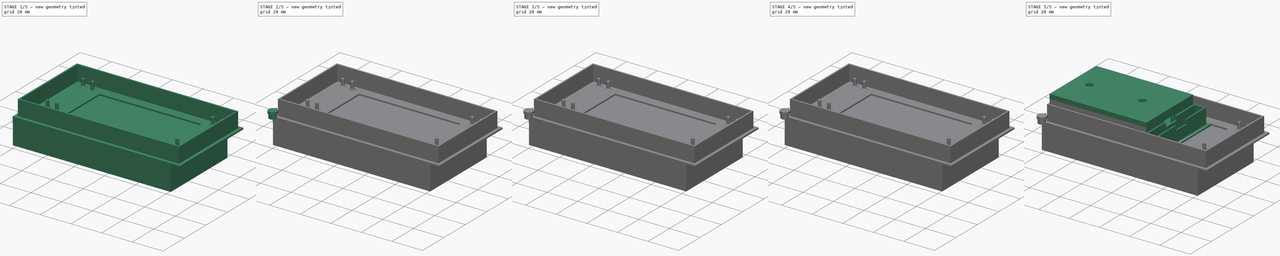
[diagram: build sequence overview — one tinted view per stage of 5, left to right]
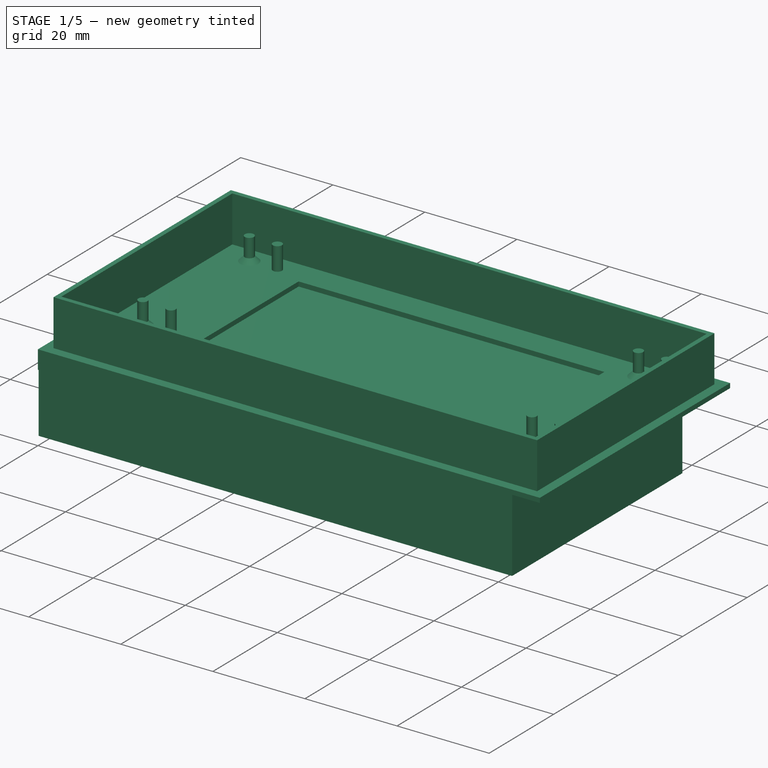
[diagram: stage 1 of 5 — iso view after this stage's code; geometry added in this stage tinted green]
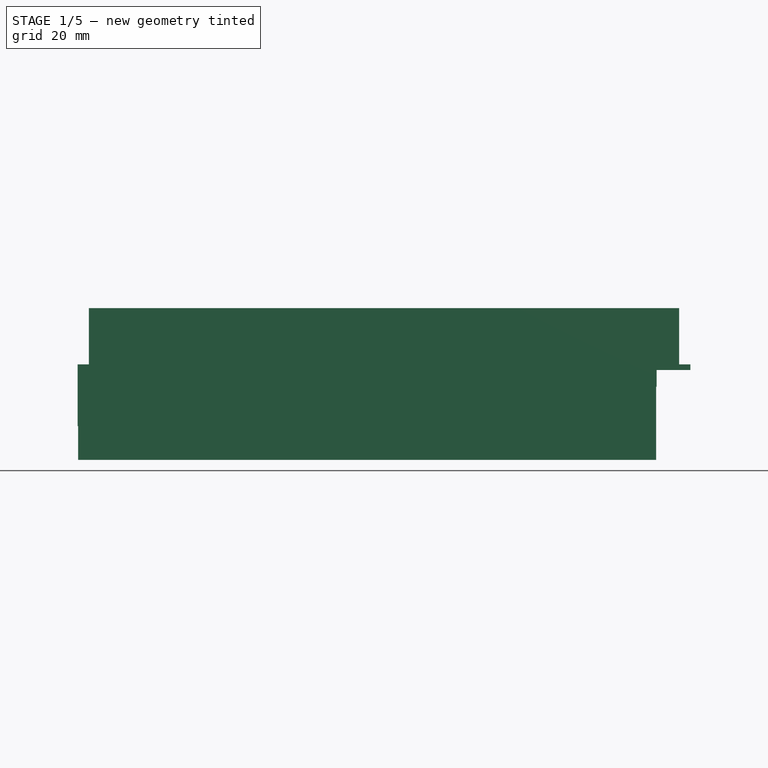
[diagram: stage 1 of 5 — front view after this stage's code; geometry added in this stage tinted green]
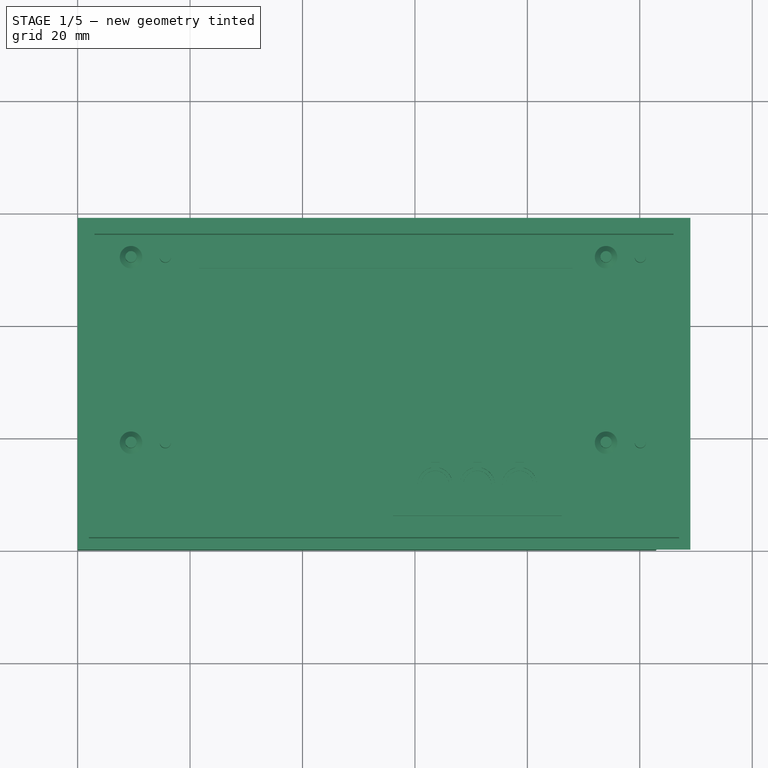
[diagram: stage 1 of 5 — top view after this stage's code; geometry added in this stage tinted green]
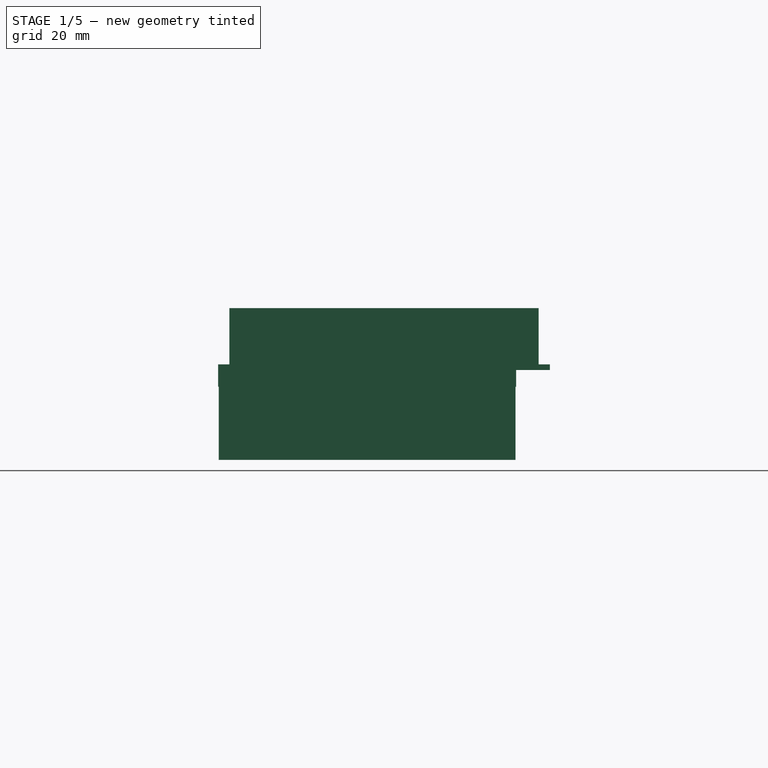
[diagram: stage 1 of 5 — right view after this stage's code; geometry added in this stage tinted green]
FCSTD DOCUMENT  (FreeCAD 0.20R29177 +426 (Git))
Label: Thermostat_Case
License: All rights reserved
LicenseURL: http://en.wikipedia.org/wiki/All_rights_reserved
objects: Sketcher::SketchObject×73, PartDesign::Pad×54, PartDesign::Pocket×16, PartDesign::Body×16, PartDesign::Chamfer×10, PartDesign::Hole×5
note: 259 computed .brp shape members not serialized (recipe doc carries the construction recipe); baked Part::Feature solids carry a one-line shape summary decoded from their .brp

FEATURE [PartDesign::Body] Body006  label="Case Back - 1.54"
  Group = -> [Sketch009,Pad003,Sketch010,Pad004,Sketch011,Pad005,Sketch012,Pocket001,Sketch013,Pad006,Sketch014,Pad007,Hole,Hole001]
  Origin = -> Origin006
  Placement = pos=(0,0,7) rot=(0,0,1;0rad)
  Tip = -> Hole001
FEATURE [Sketcher::SketchObject] Sketch015
  FullyConstrained = true
  MapMode = 5
  Support = -> [XY_Plane007]
  sketch-geometry (11):
    g0: LineSegment StartX=0 StartY=0 StartZ=0 EndX=109 EndY=0 EndZ=0
    g1: LineSegment StartX=109 StartY=0 StartZ=0 EndX=109 EndY=59 EndZ=0
    g2: LineSegment StartX=109 StartY=59 StartZ=0 EndX=0 EndY=59 EndZ=0
    g3: LineSegment StartX=0 StartY=59 StartZ=0 EndX=0 EndY=0 EndZ=0
    g4: LineSegment StartX=21.6 StartY=20.5 StartZ=0 EndX=88.6 EndY=20.5 EndZ=0
    g5: LineSegment StartX=88.6 StartY=20.5 StartZ=0 EndX=88.6 EndY=50 EndZ=0
    g6: LineSegment StartX=88.6 StartY=50 StartZ=0 EndX=21.6 EndY=50 EndZ=0
    g7: LineSegment StartX=21.6 StartY=50 StartZ=0 EndX=21.6 EndY=20.5 EndZ=0
    g8: Circle CenterX=63.6 CenterY=11.5 CenterZ=0 NormalX=0 NormalY=0 NormalZ=1 AngleXU=0 Radius=2.5
    g9: Circle CenterX=71.1 CenterY=11.5 CenterZ=0 NormalX=0 NormalY=0 NormalZ=1 AngleXU=0 Radius=2.5
    g10: Circle CenterX=78.6 CenterY=11.5 CenterZ=0 NormalX=0 NormalY=0 NormalZ=1 AngleXU=0 Radius=2.5
  constraints (32):
    c: Coincident(g0,g1)
    c: Coincident(g1,g2)
    c: Coincident(g2,g3)
    c: Coincident(g3,g0)
    c: Horizontal(g0)
    c: Horizontal(g2)
    c: Vertical(g1)
    c: Vertical(g3)
    c: Coincident(g0,g-1)
    c: Coincident(g4,g5)
    c: Coincident(g5,g6)
    c: Coincident(g6,g7)
    c: Coincident(g7,g4)
    c: Horizontal(g4)
    c: Horizontal(g6)
    c: Vertical(g5)
    c: Vertical(g7)
    c: DistanceX(g6,g6) = 67
    c: DistanceY(g5,g5) = 29.5
    c: DistanceX(g2,g2) = 109
    c: DistanceY(g1,g1) = 59
    c: DistanceX(g-1,g6) = 21.6
    c: DistanceY(g6,g2) = 9
    c: Equal(g10,g9)
    c: Equal(g9,g8)
    c: Radius(g8) = 2.5
    c: Horizontal(g8,g9)
    c: Horizontal(g9,g10)
    c: DistanceY(g8,g4) = 9
    c: DistanceX(g8,g9) = 7.5
    c: DistanceX(g10,g4) = 10
    c: DistanceX(g9,g10) = 7.5
FEATURE [PartDesign::Pad] Pad008
  Direction = (0,0,1)
  Length = 1
  Length2 = 10
  Profile = -> Sketch015
  ReferenceAxis = -> Sketch015 [N_Axis]
  Type = 0
FEATURE [Sketcher::SketchObject] Sketch016
  AttachmentOffset = pos=(0,0,1) rot=(0,0,1;0rad)
  ExternalGeometry = -> [Sketch015]
  FullyConstrained = true
  MapMode = 5
  Placement = pos=(0,0,1) rot=(0,0,1;0rad)
  Support = -> [XY_Plane007]
  sketch-geometry (4):
    g0: Circle CenterX=15.6 CenterY=52 CenterZ=0 NormalX=0 NormalY=0 NormalZ=1 AngleXU=0 Radius=1
    g1: Circle CenterX=100.1 CenterY=52 CenterZ=0 NormalX=0 NormalY=0 NormalZ=1 AngleXU=0 Radius=1
    g2: Circle CenterX=100.1 CenterY=19 CenterZ=0 NormalX=0 NormalY=0 NormalZ=1 AngleXU=0 Radius=1
    g3: Circle CenterX=15.6 CenterY=19 CenterZ=0 NormalX=0 NormalY=0 NormalZ=1 AngleXU=0 Radius=1
  constraints (12):
    c: Equal(g0,g1)
    c: Equal(g0,g2)
    c: Equal(g0,g3)
    c: Radius(g0) = 1
    c: Horizontal(g0,g1)
    c: Horizontal(g3,g2)
    c: Vertical(g3,g0)
    c: Vertical(g1,g2)
    c: DistanceX(g0,g1) = 84.5
    c: DistanceX(g3,g-4) = 6
    c: DistanceY(g0,g-3) = -2
    c: DistanceY(g3,g0) = 33
FEATURE [PartDesign::Pad] Pad009
  BaseFeature = -> Pad008
  Direction = (0,0,1)
  Length = 5
  Length2 = 10
  Profile = -> Sketch016
  ReferenceAxis = -> Sketch016 [N_Axis]
  Type = 0
FEATURE [Sketcher::SketchObject] Sketch017
  AttachmentOffset = pos=(0,0,1) rot=(0,0,1;0rad)
  ExternalGeometry = -> [Sketch015]
  FullyConstrained = true
  MapMode = 5
  Placement = pos=(0,0,1) rot=(0,0,1;0rad)
  Support = -> [XY_Plane007]
  sketch-geometry (8):
    g0: LineSegment StartX=2 StartY=57 StartZ=0 EndX=107 EndY=57 EndZ=0
    g1: LineSegment StartX=107 StartY=57 StartZ=0 EndX=107 EndY=2 EndZ=0
    g2: LineSegment StartX=107 StartY=2 StartZ=0 EndX=2 EndY=2 EndZ=0
    g3: LineSegment StartX=2 StartY=2 StartZ=0 EndX=2 EndY=57 EndZ=0
    g4: LineSegment StartX=3 StartY=3 StartZ=0 EndX=106 EndY=3 EndZ=0
    g5: LineSegment StartX=106 StartY=3 StartZ=0 EndX=106 EndY=56 EndZ=0
    g6: LineSegment StartX=106 StartY=56 StartZ=0 EndX=3 EndY=56 EndZ=0
    g7: LineSegment StartX=3 StartY=56 StartZ=0 EndX=3 EndY=3 EndZ=0
  constraints (24):
    c: Coincident(g0,g1)
    c: Coincident(g1,g2)
    c: Coincident(g2,g3)
    c: Coincident(g3,g0)
    c: Horizontal(g0)
    c: Horizontal(g2)
    c: Vertical(g1)
    c: Vertical(g3)
    c: Coincident(g4,g5)
    c: Coincident(g5,g6)
    c: Coincident(g6,g7)
    c: Coincident(g7,g4)
    c: Horizontal(g4)
    c: Horizontal(g6)
    c: Vertical(g5)
    c: Vertical(g7)
    c: DistanceY(g6,g0) = 1
    c: DistanceX(g0,g6) = 1
    c: DistanceX(g5,g0) = 1
    c: DistanceY(g1,g4) = 1
    c: DistanceX(g0,g-3) = 2
    c: DistanceY(g0,g-3) = 2
    c: DistanceX(g-3,g0) = 2
    c: DistanceY(g-4,g1) = 2
FEATURE [PartDesign::Pad] Pad010
  BaseFeature = -> Pad009
  Direction = (0,0,1)
  Length = 10
  Length2 = 10
  Profile = -> Sketch017
  ReferenceAxis = -> Sketch017 [N_Axis]
  Type = 0
FEATURE [PartDesign::Body] Body007  label="Case Front - 2.9 - USB left"
  Group = -> [Sketch015,Pad008,Sketch016,Pad009,Sketch017,Pad010,Sketch018,Pocket002,Sketch019,Pad011,Chamfer008]
  Origin = -> Origin007
  Tip = -> Chamfer008
FEATURE [Sketcher::SketchObject] Sketch068
  FullyConstrained = true
  MapMode = 5
  Support = -> [XY_Plane020]
  sketch-geometry (4):
    g0: LineSegment StartX=0 StartY=0 StartZ=0 EndX=103 EndY=0 EndZ=0
    g1: LineSegment StartX=103 StartY=0 StartZ=0 EndX=103 EndY=53 EndZ=0
    g2: LineSegment StartX=103 StartY=53 StartZ=0 EndX=0 EndY=53 EndZ=0
    g3: LineSegment StartX=0 StartY=53 StartZ=0 EndX=0 EndY=0 EndZ=0
  constraints (11):
    c: Coincident(g0,g1)
    c: Coincident(g1,g2)
    c: Coincident(g2,g3)
    c: Coincident(g3,g0)
    c: Horizontal(g0)
    c: Horizontal(g2)
    c: Vertical(g1)
    c: Vertical(g3)
    c: DistanceX(g2,g2) = 103
    c: DistanceY(g3,g3) = 53
    c: Coincident(g0,g-1)
FEATURE [PartDesign::Pad] Pad046
  Direction = (0,0,1)
  Length = 3
  Length2 = 10
  Profile = -> Sketch068
  ReferenceAxis = -> Sketch068 [N_Axis]
  Reversed = true
  Type = 0
FEATURE [Sketcher::SketchObject] Sketch069
  AttachmentOffset = pos=(0,0,-3) rot=(0,0,1;0rad)
  ExternalGeometry = -> [Sketch068]
  FullyConstrained = true
  MapMode = 5
  Placement = pos=(0,0,-3) rot=(0,0,1;0rad)
  Support = -> [XY_Plane020]
  sketch-geometry (2):
    g0: Circle CenterX=12 CenterY=33 CenterZ=0 NormalX=0 NormalY=0 NormalZ=1 AngleXU=0 Radius=5
    g1: Circle CenterX=92 CenterY=33 CenterZ=0 NormalX=0 NormalY=0 NormalZ=1 AngleXU=0 Radius=5
  constraints (6):
    c: Horizontal(g1,g0)
    c: Equal(g0,g1)
    c: Radius(g0) = 5
    c: DistanceX(g0,g1) = 80
    c: DistanceX(g-3,g0) = 12
    c: DistanceY(g0,g-3) = 20
FEATURE [PartDesign::Hole] Hole004
  BaseFeature = -> Pad046
  CustomThreadClearance = 0
  Depth = 25
  DepthType = 0
  Diameter = 4.5
  DrillForDepth = false
  DrillPoint = 1
  DrillPointAngle = 118
  HoleCutCountersinkAngle = 90
  HoleCutCustomValues = false
  HoleCutDepth = 0
  HoleCutDiameter = 6.1
  HoleCutType = 2
  ModelThread = false
  Profile = -> Sketch069
  Reversed = true
  Tapered = false
  TaperedAngle = 90
  ThreadClass = 0
  ThreadDepth = 25
  ThreadDepthType = 0
  ThreadDirection = 0
  ThreadFit = 0
  ThreadSize = 11
  ThreadType = 1
  Threaded = false
  UseCustomThreadClearance = false
FEATURE [Sketcher::SketchObject] Sketch070
  AttachmentOffset = pos=(0,0,-3) rot=(0,0,1;0rad)
  ExternalGeometry = -> [Hole004]
  FullyConstrained = true
  MapMode = 5
  Placement = pos=(0,0,-3) rot=(0,0,1;0rad)
  Support = -> [XY_Plane020]
  sketch-geometry (12):
    g0: LineSegment StartX=0 StartY=49.5 StartZ=0 EndX=41 EndY=49.5 EndZ=0
    g1: LineSegment StartX=41 StartY=49.5 StartZ=0 EndX=41 EndY=44.5 EndZ=0
    g2: LineSegment StartX=41 StartY=44.5 StartZ=0 EndX=40 EndY=44.5 EndZ=0
    g3: LineSegment StartX=40 StartY=44.5 StartZ=0 EndX=40 EndY=48.5 EndZ=0
    g4: LineSegment StartX=40 StartY=48.5 StartZ=0 EndX=1 EndY=48.5 EndZ=0
    g5: LineSegment StartX=1 StartY=48.5 StartZ=0 EndX=1 EndY=16.5 EndZ=0
    g6: LineSegment StartX=1 StartY=16.5 StartZ=0 EndX=40 EndY=16.5 EndZ=0
    g7: LineSegment StartX=40 StartY=16.5 StartZ=0 EndX=40 EndY=20.5 EndZ=0
    g8: LineSegment StartX=40 StartY=20.5 StartZ=0 EndX=41 EndY=20.5 EndZ=0
    g9: LineSegment StartX=41 StartY=20.5 StartZ=0 EndX=41 EndY=15.5 EndZ=0
    g10: LineSegment StartX=41 StartY=15.5 StartZ=0 EndX=0 EndY=15.5 EndZ=0
    g11: LineSegment StartX=0 StartY=15.5 StartZ=0 EndX=0 EndY=49.5 EndZ=0
  constraints (36):
    c: Horizontal(g0)
    c: Coincident(g0,g1)
    c: Vertical(g1)
    c: Coincident(g1,g2)
    c: Horizontal(g2)
    c: Coincident(g2,g3)
    c: Vertical(g3)
    c: Coincident(g3,g4)
    c: Horizontal(g4)
    c: Coincident(g4,g5)
    c: Vertical(g5)
    c: Coincident(g5,g6)
    c: Horizontal(g6)
    c: Coincident(g6,g7)
    c: Vertical(g7)
    c: Coincident(g7,g8)
    c: Horizontal(g8)
    c: Coincident(g8,g9)
    c: Vertical(g9)
    c: Coincident(g9,g10)
    c: Horizontal(g10)
    c: Coincident(g10,g11)
    c: Coincident(g11,g0)
    c: Vertical(g11)
    c: DistanceX(g4,g0) = -1
    c: DistanceY(g3,g0) = 1
    c: DistanceY(g9,g6) = 1
    c: DistanceX(g8,g8) = -1
    c: Vertical(g7,g2)
    c: Equal(g2,g8)
    c: DistanceX(g4,g4) = -39
    c: DistanceY(g5,g5) = 32
    c: Equal(g3,g7)
    c: DistanceY(g3,g3) = 4
    c: DistanceY(g0,g-3) = 3.5
    c: PointOnObject(g0,g-4)
FEATURE [PartDesign::Pad] Pad047
  BaseFeature = -> Hole004
  Direction = (0,0,1)
  Length = 7
  Length2 = 10
  Profile = -> Sketch070
  ReferenceAxis = -> Sketch070 [N_Axis]
  Reversed = true
  Type = 0
FEATURE [Sketcher::SketchObject] Sketch071
  AttachmentOffset = pos=(0,0,-3) rot=(0,0,1;0rad)
  FullyConstrained = true
  MapMode = 5
  Placement = pos=(0,0,-3) rot=(0,0,1;0rad)
  Support = -> [XY_Plane020]
  sketch-geometry (8):
    g0: LineSegment StartX=0.1 StartY=0.1 StartZ=0 EndX=102.9 EndY=0.1 EndZ=0
    g1: LineSegment StartX=102.9 StartY=0.1 StartZ=0 EndX=102.9 EndY=52.9 EndZ=0
    g2: LineSegment StartX=102.9 StartY=52.9 StartZ=0 EndX=0.1 EndY=52.9 EndZ=0
    g3: LineSegment StartX=0.1 StartY=52.9 StartZ=0 EndX=0.1 EndY=0.1 EndZ=0
    g4: LineSegment StartX=1.1 StartY=51.9 StartZ=0 EndX=101.9 EndY=51.9 EndZ=0
    g5: LineSegment StartX=101.9 StartY=51.9 StartZ=0 EndX=101.9 EndY=1.1 EndZ=0
    g6: LineSegment StartX=101.9 StartY=1.1 StartZ=0 EndX=1.1 EndY=1.1 EndZ=0
    g7: LineSegment StartX=1.1 StartY=1.1 StartZ=0 EndX=1.1 EndY=51.9 EndZ=0
  constraints (24):
    c: Coincident(g0,g1)
    c: Coincident(g1,g2)
    c: Coincident(g2,g3)
    c: Coincident(g3,g0)
    c: Horizontal(g0)
    c: Horizontal(g2)
    c: Vertical(g1)
    c: Vertical(g3)
    c: Coincident(g4,g5)
    c: Coincident(g5,g6)
    c: Coincident(g6,g7)
    c: Coincident(g7,g4)
    c: Horizontal(g4)
    c: Horizontal(g6)
    c: Vertical(g5)
    c: Vertical(g7)
    c: DistanceX(g0,g6) = 1
    c: DistanceY(g0,g6) = 1
    c: DistanceY(g4,g1) = 1
    c: DistanceX(g4,g1) = 1
    c: DistanceY(g3,g3) = 52.8
    c: DistanceX(g0,g0) = 102.8
    c: DistanceX(g-1,g0) = 0.1
    c: DistanceY(g-1,g0) = 0.1
FEATURE [PartDesign::Pad] Pad048
  BaseFeature = -> Pad047
  Direction = (0,0,1)
  Length = 13
  Length2 = 10
  Profile = -> Sketch071
  ReferenceAxis = -> Sketch071 [N_Axis]
  Reversed = true
  Type = 0
FEATURE [Sketcher::SketchObject] Sketch073
  AttachmentOffset = pos=(0,0,-3) rot=(0,0,1;0rad)
  FullyConstrained = true
  MapMode = 5
  Placement = pos=(0,0,-3) rot=(0,0,1;0rad)
  Support = -> [XY_Plane020]
  sketch-geometry (10):
    g0: LineSegment StartX=52 StartY=1 StartZ=0 EndX=84 EndY=1 EndZ=0
    g1: LineSegment StartX=84 StartY=1 StartZ=0 EndX=84 EndY=16.5 EndZ=0
    g2: LineSegment StartX=52 StartY=7 StartZ=0 EndX=52 EndY=1 EndZ=0
    g3: LineSegment StartX=53 StartY=2 StartZ=0 EndX=83 EndY=2 EndZ=0
    g4: LineSegment StartX=83 StartY=2 StartZ=0 EndX=83 EndY=15 EndZ=0
    g5: LineSegment StartX=53 StartY=2 StartZ=0 EndX=53 EndY=7 EndZ=0
    g6: LineSegment StartX=53 StartY=7 StartZ=0 EndX=52 EndY=7 EndZ=0
    g7: LineSegment StartX=84 StartY=16.5 StartZ=0 EndX=62 EndY=16.5 EndZ=0
    g8: LineSegment StartX=62 StartY=16.5 StartZ=0 EndX=62 EndY=15 EndZ=0
    g9: LineSegment StartX=62 StartY=15 StartZ=0 EndX=83 EndY=15 EndZ=0
  constraints (30):
    c: Coincident(g0,g1)
    c: Coincident(g2,g0)
    c: Horizontal(g0)
    c: Vertical(g1)
    c: Vertical(g2)
    c: Coincident(g3,g4)
    c: Horizontal(g3)
    c: Vertical(g4)
    c: DistanceX(g0,g3) = 1
    c: DistanceY(g0,g3) = 1
    c: DistanceY(g4,g1) = 1.5
    c: DistanceX(g4,g1) = 1
    c: DistanceY(g-1,g0) = 1
    c: DistanceX(g-1,g0) = 52
    c: DistanceY(g4,g4) = 13
    c: Coincident(g3,g5)
    c: Vertical(g5)
    c: Coincident(g5,g6)
    c: Coincident(g6,g2)
    c: Horizontal(g6)
    c: DistanceY(g5,g5) = 5
    c: Coincident(g1,g7)
    c: Horizontal(g7)
    c: Coincident(g7,g8)
    c: Vertical(g8)
    c: Coincident(g8,g9)
    c: Coincident(g9,g4)
    c: Horizontal(g9)
    c: DistanceX(g9,g9) = 21
    c: DistanceX(g3,g3) = 30
FEATURE [PartDesign::Pad] Pad049
  BaseFeature = -> Pad048
  Direction = (0,0,1)
  Length = 7
  Length2 = 10
  Profile = -> Sketch073
  ReferenceAxis = -> Sketch073 [N_Axis]
  Reversed = true
  Type = 0
FEATURE [Sketcher::SketchObject] Sketch074
  AttachmentOffset = pos=(0,0,-3) rot=(0,0,1;0rad)
  FullyConstrained = false
  MapMode = 5
  Placement = pos=(0,0,-3) rot=(0,0,1;0rad)
  Support = -> [XY_Plane020]
  sketch-geometry (10):
    g0: LineSegment StartX=53 StartY=7 StartZ=0 EndX=53 EndY=2 EndZ=0
    g1: LineSegment StartX=53 StartY=2 StartZ=0 EndX=83 EndY=2 EndZ=0
    g2: LineSegment StartX=83 StartY=2 StartZ=0 EndX=83 EndY=15 EndZ=0
    g3: LineSegment StartX=83 StartY=15 StartZ=0 EndX=62 EndY=15 EndZ=0
    g4: LineSegment StartX=62 StartY=15 StartZ=0 EndX=62 EndY=14 EndZ=0
    g5: LineSegment StartX=62 StartY=14 StartZ=0 EndX=82 EndY=14 EndZ=0
    g6: LineSegment StartX=82 StartY=14 StartZ=0 EndX=82 EndY=3 EndZ=0
    g7: LineSegment StartX=82 StartY=3 StartZ=0 EndX=54 EndY=3 EndZ=0
    g8: LineSegment StartX=54 StartY=3 StartZ=0 EndX=54 EndY=7 EndZ=0
    g9: LineSegment StartX=54 StartY=7 StartZ=0 EndX=53 EndY=7 EndZ=0
  constraints (22):
    c: Vertical(g0)
    c: Coincident(g0,g1)
    c: Horizontal(g1)
    c: Coincident(g1,g2)
    c: Coincident(g2,g3)
    c: Coincident(g3,g4)
    c: Vertical(g4)
    c: Coincident(g4,g5)
    c: Horizontal(g5)
    c: Coincident(g5,g6)
    c: Coincident(g6,g7)
    c: Horizontal(g7)
    c: Coincident(g7,g8)
    c: Coincident(g8,g9)
    c: Vertical(g6)
    c: DistanceY(g4,g4) = 1
    c: DistanceX(g5,g2) = 1
    c: DistanceY(g1,g6) = 1
    c: Coincident(g9,g0)
    c: Horizontal(g9)
    c: Vertical(g8)
    c: DistanceX(g9,g9) = 1
FEATURE [PartDesign::Pad] Pad050
  BaseFeature = -> Pad049
  Direction = (0,0,1)
  Length = 5
  Length2 = 10
  Profile = -> Sketch074
  ReferenceAxis = -> Sketch074 [N_Axis]
  Reversed = true
  Type = 0
FEATURE [Sketcher::SketchObject] Sketch075
  AttachmentOffset = pos=(0,0,-3) rot=(0,0,1;0rad)
  ExternalGeometry = -> [Pad050]
  FullyConstrained = true
  MapMode = 5
  Placement = pos=(0,0,-3) rot=(0,0,1;0rad)
  Support = -> [XY_Plane020]
  sketch-geometry (12):
    g0: LineSegment StartX=40 StartY=20.5 StartZ=0 EndX=39 EndY=20.5 EndZ=0
    g1: LineSegment StartX=39 StartY=20.5 StartZ=0 EndX=39 EndY=17.5 EndZ=0
    g2: LineSegment StartX=39 StartY=17.5 StartZ=0 EndX=1.1 EndY=17.5 EndZ=0
    g3: LineSegment StartX=1.1 StartY=17.5 StartZ=0 EndX=1.1 EndY=16.5 EndZ=0
    g4: LineSegment StartX=1.1 StartY=16.5 StartZ=0 EndX=40 EndY=16.5 EndZ=0
    g5: LineSegment StartX=40 StartY=16.5 StartZ=0 EndX=40 EndY=20.5 EndZ=0
    g6: LineSegment StartX=40 StartY=44.5 StartZ=0 EndX=40 EndY=48.5 EndZ=0
    g7: LineSegment StartX=40 StartY=48.5 StartZ=0 EndX=1.1 EndY=48.5 EndZ=0
    g8: LineSegment StartX=1.1 StartY=48.5 StartZ=0 EndX=1.1 EndY=47.5 EndZ=0
    g9: LineSegment StartX=1.1 StartY=47.5 StartZ=0 EndX=39 EndY=47.5 EndZ=0
    g10: LineSegment StartX=39 StartY=47.5 StartZ=0 EndX=39 EndY=44.5 EndZ=0
    g11: LineSegment StartX=39 StartY=44.5 StartZ=0 EndX=40 EndY=44.5 EndZ=0
  constraints (30):
    c: Horizontal(g0)
    c: Coincident(g0,g1)
    c: Vertical(g1)
    c: Coincident(g1,g2)
    c: Horizontal(g2)
    c: Coincident(g2,g3)
    c: Coincident(g3,g-4)
    c: Vertical(g3)
    c: Coincident(g3,g4)
    c: Coincident(g4,g-5)
    c: Coincident(g4,g5)
    c: Coincident(g5,g0)
    c: Coincident(g0,g-5)
    c: DistanceX(g0,g0) = 1
    c: DistanceY(g3,g3) = 1
    c: Coincident(g-6,g6)
    c: Coincident(g6,g-7)
    c: Coincident(g6,g7)
    c: Coincident(g7,g-7)
    c: Coincident(g7,g8)
    c: Coincident(g8,g9)
    c: Horizontal(g9)
    c: Coincident(g9,g10)
    c: Vertical(g10)
    c: Coincident(g10,g11)
    c: Coincident(g11,g6)
    c: Horizontal(g11)
    c: Vertical(g8)
    c: DistanceY(g8,g8) = 1
    c: DistanceX(g11,g11) = 1
FEATURE [PartDesign::Pad] Pad051
  BaseFeature = -> Pad050
  Direction = (0,0,1)
  Length = 4
  Length2 = 10
  Profile = -> Sketch075
  ReferenceAxis = -> Sketch075 [N_Axis]
  Reversed = true
  Type = 0
FEATURE [Sketcher::SketchObject] Sketch076
  ExternalGeometry = -> [Pad051]
  FullyConstrained = true
  MapMode = 5
  Placement = pos=(0,0,0) rot=(0.57735,0.57735,0.57735;2.0944rad)
  Support = -> [YZ_Plane020]
  sketch-geometry (4):
    g0: LineSegment StartX=27.5 StartY=-3 StartZ=0 EndX=37.5 EndY=-3 EndZ=0
    g1: LineSegment StartX=37.5 StartY=-3 StartZ=0 EndX=37.5 EndY=-13 EndZ=0
    g2: LineSegment StartX=37.5 StartY=-13 StartZ=0 EndX=27.5 EndY=-13 EndZ=0
    g3: LineSegment StartX=27.5 StartY=-13 StartZ=0 EndX=27.5 EndY=-3 EndZ=0
  constraints (12):
    c: Coincident(g0,g1)
    c: Coincident(g1,g2)
    c: Coincident(g2,g3)
    c: Coincident(g3,g0)
    c: Horizontal(g0)
    c: Horizontal(g2)
    c: Vertical(g1)
    c: Vertical(g3)
    c: DistanceX(g2,g2) = 10
    c: DistanceX(g0,g-4) = 7
    c: PointOnObject(g0,g-5)
    c: DistanceY(g3,g3) = 10
FEATURE [PartDesign::Pocket] Pocket015
  BaseFeature = -> Pad051
  Direction = (-1,2e-16,-3e-16)
  Length = 5
  Length2 = 5
  Profile = -> Sketch076
  ReferenceAxis = -> Sketch076 [N_Axis]
  Reversed = true
  Type = 0
FEATURE [PartDesign::Body] Body020  label="Case Back - 2.9 - USB right"
  Group = -> [Sketch068,Pad046,Sketch069,Hole004,Sketch070,Pad047,Sketch071,Pad048,Sketch073,Pad049,Sketch074,Pad050,Sketch075,Pad051,Sketch076,Pocket015]
  Origin = -> Origin020
  Placement = pos=(3,3,17) rot=(0,0,1;0rad)
  Tip = -> Pocket015
FEATURE [Sketcher::SketchObject] Sketch077
  FullyConstrained = true
  MapMode = 5
  Support = -> [XY_Plane021]
  sketch-geometry (11):
    g0: LineSegment StartX=0 StartY=0 StartZ=0 EndX=109 EndY=0 EndZ=0
    g1: LineSegment StartX=109 StartY=0 StartZ=0 EndX=109 EndY=59 EndZ=0
    g2: LineSegment StartX=109 StartY=59 StartZ=0 EndX=0 EndY=59 EndZ=0
    g3: LineSegment StartX=0 StartY=59 StartZ=0 EndX=0 EndY=0 EndZ=0
    g4: LineSegment StartX=21 StartY=20.5 StartZ=0 EndX=88 EndY=20.5 EndZ=0
    g5: LineSegment StartX=88 StartY=20.5 StartZ=0 EndX=88 EndY=50 EndZ=0
    g6: LineSegment StartX=88 StartY=50 StartZ=0 EndX=21 EndY=50 EndZ=0
    g7: LineSegment StartX=21 StartY=50 StartZ=0 EndX=21 EndY=20.5 EndZ=0
    g8: Circle CenterX=63.6 CenterY=11.5 CenterZ=0 NormalX=0 NormalY=0 NormalZ=1 AngleXU=0 Radius=2.5
    g9: Circle CenterX=71.1 CenterY=11.5 CenterZ=0 NormalX=0 NormalY=0 NormalZ=1 AngleXU=0 Radius=2.5
    g10: Circle CenterX=78.6 CenterY=11.5 CenterZ=0 NormalX=0 NormalY=0 NormalZ=1 AngleXU=0 Radius=2.5
  constraints (32):
    c: Coincident(g0,g1)
    c: Coincident(g1,g2)
    c: Coincident(g2,g3)
    c: Coincident(g3,g0)
    c: Horizontal(g0)
    c: Horizontal(g2)
    c: Vertical(g1)
    c: Vertical(g3)
    c: Coincident(g0,g-1)
    c: Coincident(g4,g5)
    c: Coincident(g5,g6)
    c: Coincident(g6,g7)
    c: Coincident(g7,g4)
    c: Horizontal(g4)
    c: Horizontal(g6)
    c: Vertical(g5)
    c: Vertical(g7)
    c: DistanceX(g6,g6) = 67
    c: DistanceY(g5,g5) = 29.5
    c: DistanceX(g2,g2) = 109
    c: DistanceY(g1,g1) = 59
    c: DistanceX(g-1,g6) = 21
    c: DistanceY(g6,g2) = 9
    c: Equal(g10,g9)
    c: Equal(g9,g8)
    c: Radius(g8) = 2.5
    c: Horizontal(g8,g9)
    c: Horizontal(g9,g10)
    c: DistanceY(g8,g4) = 9
    c: DistanceX(g8,g9) = 7.5
    c: DistanceX(g10,g4) = 9.4
    c: DistanceX(g9,g10) = 7.5
FEATURE [PartDesign::Pad] Pad052
  Direction = (0,0,1)
  Length = 1
  Length2 = 10
  Profile = -> Sketch077
  ReferenceAxis = -> Sketch077 [N_Axis]
  Type = 0
FEATURE [Sketcher::SketchObject] Sketch078
  AttachmentOffset = pos=(0,0,1) rot=(0,0,1;0rad)
  ExternalGeometry = -> [Sketch077]
  FullyConstrained = true
  MapMode = 5
  Placement = pos=(0,0,1) rot=(0,0,1;0rad)
  Support = -> [XY_Plane021]
  sketch-geometry (4):
    g0: Circle CenterX=9.5 CenterY=52 CenterZ=0 NormalX=0 NormalY=0 NormalZ=1 AngleXU=0 Radius=1
    g1: Circle CenterX=94 CenterY=52 CenterZ=0 NormalX=0 NormalY=0 NormalZ=1 AngleXU=0 Radius=1
    g2: Circle CenterX=94 CenterY=19 CenterZ=0 NormalX=0 NormalY=0 NormalZ=1 AngleXU=0 Radius=1
    g3: Circle CenterX=9.5 CenterY=19 CenterZ=0 NormalX=0 NormalY=0 NormalZ=1 AngleXU=0 Radius=1
  constraints (12):
    c: Equal(g0,g1)
    c: Equal(g0,g2)
    c: Equal(g0,g3)
    c: Radius(g0) = 1
    c: Horizontal(g0,g1)
    c: Horizontal(g3,g2)
    c: Vertical(g3,g0)
    c: Vertical(g1,g2)
    c: DistanceX(g0,g1) = 84.5
    c: DistanceY(g0,g-3) = -2
    c: DistanceY(g3,g0) = 33
    c: DistanceX(g-4,g2) = 6
FEATURE [PartDesign::Pad] Pad053
  BaseFeature = -> Pad052
  Direction = (0,0,1)
  Length = 5
  Length2 = 10
  Profile = -> Sketch078
  ReferenceAxis = -> Sketch078 [N_Axis]
  Type = 0
FEATURE [Sketcher::SketchObject] Sketch079
  AttachmentOffset = pos=(0,0,1) rot=(0,0,1;0rad)
  ExternalGeometry = -> [Sketch077]
  FullyConstrained = true
  MapMode = 5
  Placement = pos=(0,0,1) rot=(0,0,1;0rad)
  Support = -> [XY_Plane021]
  sketch-geometry (8):
    g0: LineSegment StartX=2 StartY=57 StartZ=0 EndX=107 EndY=57 EndZ=0
    g1: LineSegment StartX=107 StartY=57 StartZ=0 EndX=107 EndY=2 EndZ=0
    g2: LineSegment StartX=107 StartY=2 StartZ=0 EndX=2 EndY=2 EndZ=0
    g3: LineSegment StartX=2 StartY=2 StartZ=0 EndX=2 EndY=57 EndZ=0
    g4: LineSegment StartX=3 StartY=3 StartZ=0 EndX=106 EndY=3 EndZ=0
    g5: LineSegment StartX=106 StartY=3 StartZ=0 EndX=106 EndY=56 EndZ=0
    g6: LineSegment StartX=106 StartY=56 StartZ=0 EndX=3 EndY=56 EndZ=0
    g7: LineSegment StartX=3 StartY=56 StartZ=0 EndX=3 EndY=3 EndZ=0
  constraints (24):
    c: Coincident(g0,g1)
    c: Coincident(g1,g2)
    c: Coincident(g2,g3)
    c: Coincident(g3,g0)
    c: Horizontal(g0)
    c: Horizontal(g2)
    c: Vertical(g1)
    c: Vertical(g3)
    c: Coincident(g4,g5)
    c: Coincident(g5,g6)
    c: Coincident(g6,g7)
    c: Coincident(g7,g4)
    c: Horizontal(g4)
    c: Horizontal(g6)
    c: Vertical(g5)
    c: Vertical(g7)
    c: DistanceY(g6,g0) = 1
    c: DistanceX(g0,g6) = 1
    c: DistanceX(g5,g0) = 1
    c: DistanceY(g1,g4) = 1
    c: DistanceX(g0,g-3) = 2
    c: DistanceY(g0,g-3) = 2
    c: DistanceX(g-3,g0) = 2
    c: DistanceY(g-4,g1) = 2
FEATURE [PartDesign::Pad] Pad054
  BaseFeature = -> Pad053
  Direction = (0,0,1)
  Length = 10
  Length2 = 10
  Profile = -> Sketch079
  ReferenceAxis = -> Sketch079 [N_Axis]
  Type = 0
FEATURE [Sketcher::SketchObject] Sketch081
  FullyConstrained = false
  MapMode = 5
  Placement = pos=(0,0,1) rot=(0,0,1;0rad)
  sketch-geometry (16):
    g0: LineSegment StartX=56.1 StartY=16 StartZ=0 EndX=86.1 EndY=16 EndZ=0
    g1: LineSegment StartX=86.1 StartY=16 StartZ=0 EndX=86.1 EndY=6 EndZ=0
    g2: LineSegment StartX=86.1 StartY=6 StartZ=0 EndX=56.1 EndY=6 EndZ=0
    g3: LineSegment StartX=56.1 StartY=6 StartZ=0 EndX=56.1 EndY=16 EndZ=0
    g4: ArcOfCircle CenterX=63.6 CenterY=11.5 CenterZ=0 NormalX=0 NormalY=0 NormalZ=1 AngleXU=0 Radius=3.1 StartAngle=1.81516 EndAngle=7.60962
    g5: ArcOfCircle CenterX=71.1 CenterY=11.5 CenterZ=0 NormalX=0 NormalY=0 NormalZ=1 AngleXU=0 Radius=3.1 StartAngle=1.81516 EndAngle=7.60962
    g6: ArcOfCircle CenterX=78.6 CenterY=11.5 CenterZ=0 NormalX=0 NormalY=0 NormalZ=1 AngleXU=0 Radius=3.1 StartAngle=1.81516 EndAngle=7.60962
    g7: LineSegment StartX=62.85 StartY=14.5079 StartZ=0 EndX=62.85 EndY=15.5079 EndZ=0
    g8: LineSegment StartX=62.85 StartY=15.5079 StartZ=0 EndX=64.35 EndY=15.5079 EndZ=0
    g9: LineSegment StartX=64.35 StartY=15.5079 StartZ=0 EndX=64.35 EndY=14.5079 EndZ=0
    g10: LineSegment StartX=70.35 StartY=14.5079 StartZ=0 EndX=70.35 EndY=15.5079 EndZ=0
    g11: LineSegment StartX=70.35 StartY=15.5079 StartZ=0 EndX=71.85 EndY=15.5079 EndZ=0
    g12: LineSegment StartX=71.85 StartY=15.5079 StartZ=0 EndX=71.85 EndY=14.5079 EndZ=0
    g13: LineSegment StartX=77.85 StartY=14.5079 StartZ=0 EndX=77.85 EndY=15.5079 EndZ=0
    g14: LineSegment StartX=77.85 StartY=15.5079 StartZ=0 EndX=79.35 EndY=15.5079 EndZ=0
    g15: LineSegment StartX=79.35 StartY=15.5079 StartZ=0 EndX=79.35 EndY=14.5079 EndZ=0
  constraints (45):
    c: Coincident(g0,g1)
    c: Coincident(g1,g2)
    c: Coincident(g2,g3)
    c: Coincident(g3,g0)
    c: Horizontal(g0)
    c: Horizontal(g2)
    c: Vertical(g1)
    c: Vertical(g3)
    c: DistanceX(g0,g0) = 30
    c: DistanceY(g1,g1) = 10
    c: Horizontal(g4,g4)
    c: Horizontal(g4,g5)
    c: Horizontal(g5,g5)
    c: Horizontal(g5,g6)
    c: Horizontal(g6,g6)
    c: DistanceX(g4,g4) = 1.5
    c: Coincident(g7,g8)
    c: Coincident(g8,g9)
    c: Coincident(g10,g11)
    c: Coincident(g11,g12)
    c: Coincident(g13,g14)
    c: Coincident(g14,g15)
    c: Vertical(g15)
    c: Vertical(g13)
    c: Vertical(g12)
    c: Vertical(g10)
    c: Vertical(g9)
    c: Vertical(g7)
    c: Horizontal(g8)
    c: Horizontal(g11)
    c: Horizontal(g14)
    c: Coincident(g7,g4)
    c: Coincident(g9,g4)
    c: Coincident(g10,g5)
    c: Coincident(g12,g5)
    c: Coincident(g13,g6)
    c: Coincident(g6,g15)
    c: Horizontal(g7,g10)
    c: Horizontal(g10,g13)
    c: DistanceY(g7,g7) = 1
    c: Radius(g4) = 3.1
    c: Equal(g8,g11)
    c: Equal(g11,g14)
    c: DistanceX(g2,g4) = 7.5
    c: DistanceY(g2,g4) = 5.5
FEATURE [PartDesign::Pad] Pad055
  BaseFeature = -> Pad054
  Direction = (0,0,1)
  Length = 2
  Length2 = 10
  Profile = -> Sketch081
  ReferenceAxis = -> Sketch081 [N_Axis]
  Type = 0
FEATURE [Sketcher::SketchObject] Sketch082
  FullyConstrained = false
  MapMode = 5
  Placement = pos=(2,0,0) rot=(0.57735,-0.57735,-0.57735;2.0944rad)
  Support = -> [Pad055]
  sketch-geometry (4):
    g0: LineSegment StartX=-30.5 StartY=8 StartZ=0 EndX=-40.5 EndY=8 EndZ=0
    g1: LineSegment StartX=-40.5 StartY=8 StartZ=0 EndX=-40.5 EndY=11 EndZ=0
    g2: LineSegment StartX=-40.5 StartY=11 StartZ=0 EndX=-30.5 EndY=11 EndZ=0
    g3: LineSegment StartX=-30.5 StartY=11 StartZ=0 EndX=-30.5 EndY=8 EndZ=0
  constraints (8):
    c: Coincident(g0,g1)
    c: Coincident(g1,g2)
    c: Coincident(g2,g3)
    c: Coincident(g3,g0)
    c: Horizontal(g0)
    c: Horizontal(g2)
    c: Vertical(g1)
    c: Vertical(g3)
FEATURE [PartDesign::Pocket] Pocket017
  BaseFeature = -> Pad055
  Direction = (1,0,0)
  Length = 5
  Length2 = 5
  Profile = -> Sketch082
  ReferenceAxis = -> Sketch082 [N_Axis]
  Type = 0
FEATURE [PartDesign::Chamfer] Chamfer009
  Angle = 45
  Base = -> Pocket017 [Edge60,Edge54,Edge59,Edge61]
  BaseFeature = -> Pocket017
  ChamferType = 0
  FlipDirection = false
  Size = 1
  Size2 = 1
  SupportTransform = false
  UseAllEdges = false
FEATURE [PartDesign::Body] Body021  label="Case Front - 2.9 - USB right"
  Group = -> [Sketch077,Pad052,Sketch078,Pad053,Sketch079,Pad054,Sketch081,Pad055,Sketch082,Pocket017,Chamfer009]
  Origin = -> Origin021
  Tip = -> Chamfer009
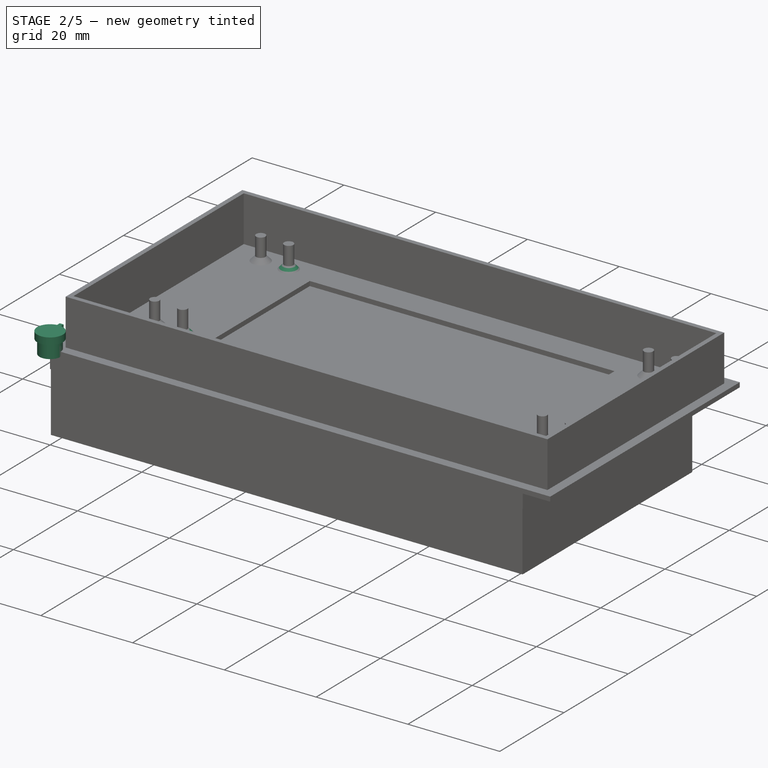
[diagram: stage 2 of 5 — iso view after this stage's code; geometry added in this stage tinted green]
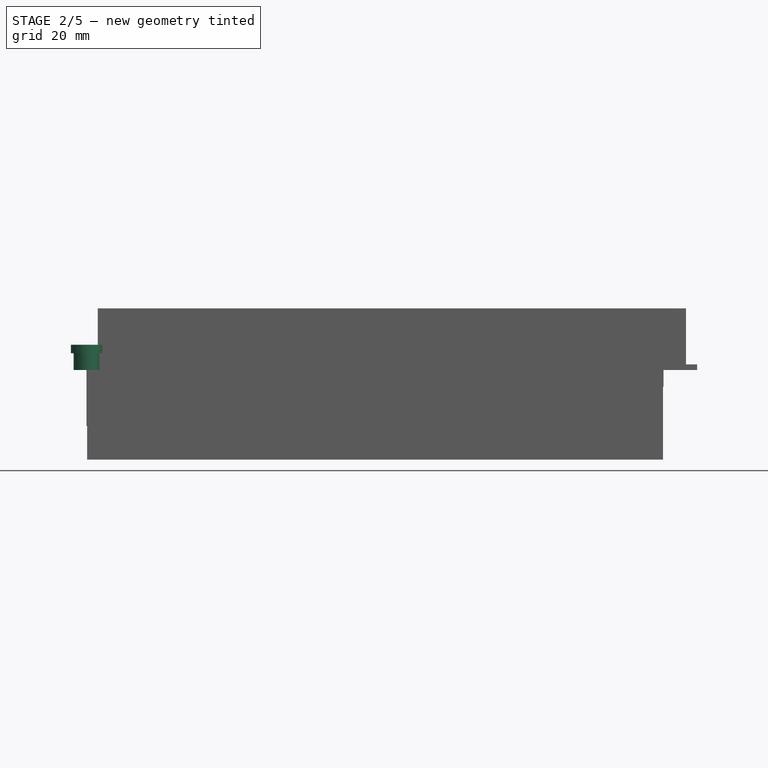
[diagram: stage 2 of 5 — front view after this stage's code; geometry added in this stage tinted green]
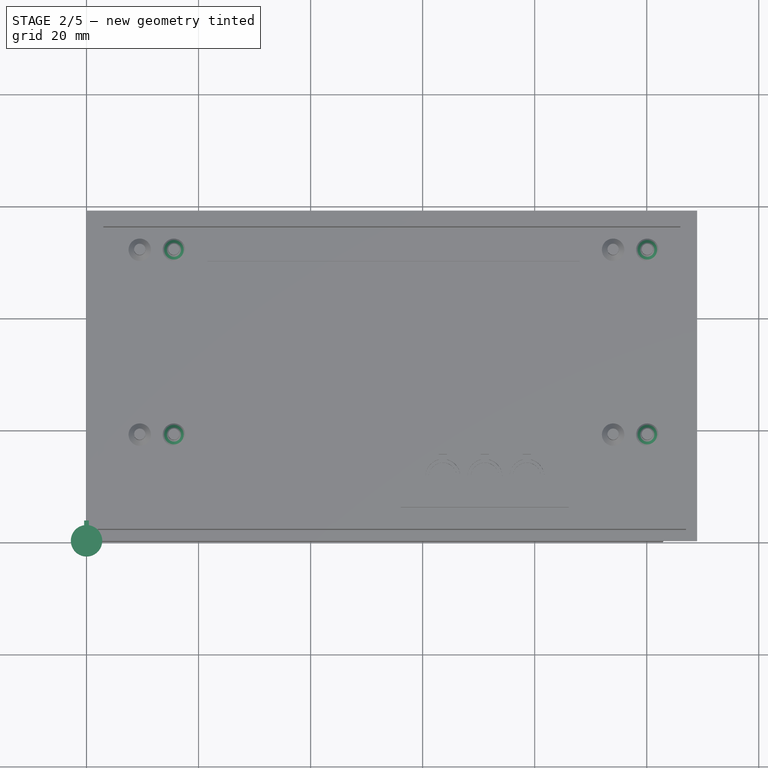
[diagram: stage 2 of 5 — top view after this stage's code; geometry added in this stage tinted green]
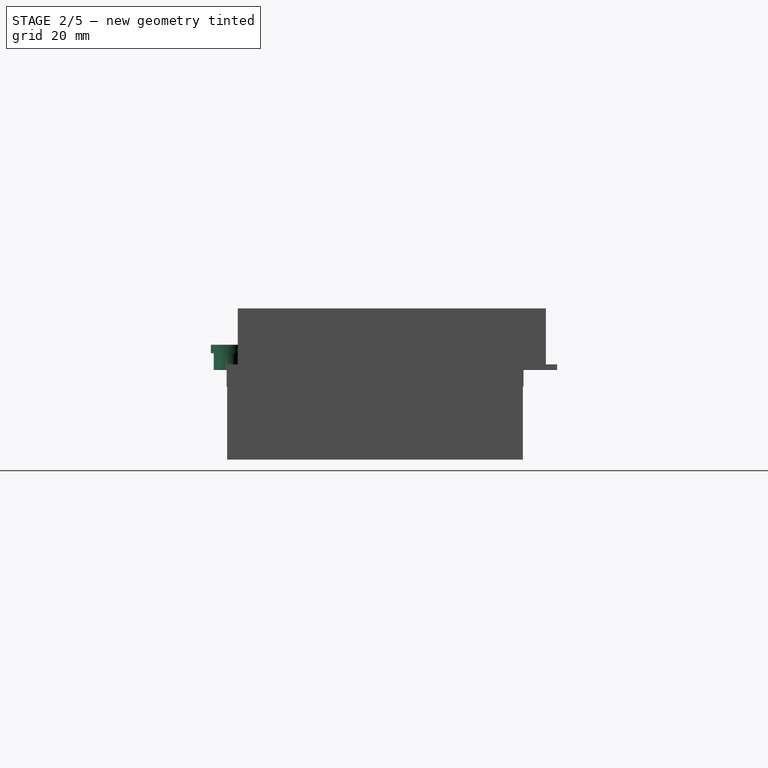
[diagram: stage 2 of 5 — right view after this stage's code; geometry added in this stage tinted green]
FEATURE [Sketcher::SketchObject] Sketch018
  ExternalGeometry = -> [Pad010]
  FullyConstrained = true
  MapMode = 5
  Placement = pos=(107,0,0) rot=(0.57735,0.57735,0.57735;2.0944rad)
  Support = -> [Pad010]
  sketch-geometry (4):
    g0: LineSegment StartX=30.5 StartY=11 StartZ=0 EndX=40.5 EndY=11 EndZ=0
    g1: LineSegment StartX=40.5 StartY=11 StartZ=0 EndX=40.5 EndY=8 EndZ=0
    g2: LineSegment StartX=40.5 StartY=8 StartZ=0 EndX=30.5 EndY=8 EndZ=0
    g3: LineSegment StartX=30.5 StartY=8 StartZ=0 EndX=30.5 EndY=11 EndZ=0
  constraints (13):
    c: Coincident(g0,g1)
    c: Coincident(g1,g2)
    c: Coincident(g2,g3)
    c: Coincident(g3,g0)
    c: Horizontal(g0)
    c: Horizontal(g2)
    c: Vertical(g1)
    c: Vertical(g3)
    c: DistanceX(g0,g0) = 10
    c: DistanceY(g1,g1) = 3
    c: DistanceX(g0,g-3) = 9.5
    c: Horizontal(g0,g-4)
    c: DistanceX(g-3,g-3) = 29.5
FEATURE [PartDesign::Pocket] Pocket002
  BaseFeature = -> Pad010
  Direction = (-1,0,0)
  Length = 5
  Length2 = 5
  Profile = -> Sketch018
  ReferenceAxis = -> Sketch018 [N_Axis]
  Type = 0
FEATURE [Sketcher::SketchObject] Sketch019
  ExternalGeometry = -> [Pocket002]
  FullyConstrained = true
  MapMode = 5
  Placement = pos=(0,0,1) rot=(0,0,1;0rad)
  Support = -> [Pocket002]
  sketch-geometry (16):
    g0: LineSegment StartX=56.1 StartY=16 StartZ=0 EndX=86.1 EndY=16 EndZ=0
    g1: LineSegment StartX=86.1 StartY=16 StartZ=0 EndX=86.1 EndY=6 EndZ=0
    g2: LineSegment StartX=86.1 StartY=6 StartZ=0 EndX=56.1 EndY=6 EndZ=0
    g3: LineSegment StartX=56.1 StartY=6 StartZ=0 EndX=56.1 EndY=16 EndZ=0
    g4: ArcOfCircle CenterX=63.6 CenterY=11.5 CenterZ=0 NormalX=0 NormalY=0 NormalZ=1 AngleXU=0 Radius=3.1 StartAngle=1.81516 EndAngle=7.60962
    g5: ArcOfCircle CenterX=71.1 CenterY=11.5 CenterZ=0 NormalX=0 NormalY=0 NormalZ=1 AngleXU=0 Radius=3.1 StartAngle=1.81516 EndAngle=7.60962
    g6: ArcOfCircle CenterX=78.6 CenterY=11.5 CenterZ=0 NormalX=0 NormalY=0 NormalZ=1 AngleXU=0 Radius=3.1 StartAngle=1.81516 EndAngle=7.60962
    g7: LineSegment StartX=62.85 StartY=14.5079 StartZ=0 EndX=62.85 EndY=15.5079 EndZ=0
    g8: LineSegment StartX=62.85 StartY=15.5079 StartZ=0 EndX=64.35 EndY=15.5079 EndZ=0
    g9: LineSegment StartX=64.35 StartY=15.5079 StartZ=0 EndX=64.35 EndY=14.5079 EndZ=0
    g10: LineSegment StartX=70.35 StartY=14.5079 StartZ=0 EndX=70.35 EndY=15.5079 EndZ=0
    g11: LineSegment StartX=70.35 StartY=15.5079 StartZ=0 EndX=71.85 EndY=15.5079 EndZ=0
    g12: LineSegment StartX=71.85 StartY=15.5079 StartZ=0 EndX=71.85 EndY=14.5079 EndZ=0
    g13: LineSegment StartX=77.85 StartY=14.5079 StartZ=0 EndX=77.85 EndY=15.5079 EndZ=0
    g14: LineSegment StartX=77.85 StartY=15.5079 StartZ=0 EndX=79.35 EndY=15.5079 EndZ=0
    g15: LineSegment StartX=79.35 StartY=15.5079 StartZ=0 EndX=79.35 EndY=14.5079 EndZ=0
  constraints (48):
    c: Coincident(g0,g1)
    c: Coincident(g1,g2)
    c: Coincident(g2,g3)
    c: Coincident(g3,g0)
    c: Horizontal(g0)
    c: Horizontal(g2)
    c: Vertical(g1)
    c: Vertical(g3)
    c: DistanceX(g0,g0) = 30
    c: DistanceY(g1,g1) = 10
    c: Coincident(g4,g-3)
    c: Coincident(g5,g-4)
    c: Coincident(g6,g-5)
    c: Horizontal(g4,g4)
    c: Horizontal(g4,g5)
    c: Horizontal(g5,g5)
    c: Horizontal(g5,g6)
    c: Horizontal(g6,g6)
    c: DistanceX(g4,g4) = 1.5
    c: Coincident(g7,g8)
    c: Coincident(g8,g9)
    c: Coincident(g10,g11)
    c: Coincident(g11,g12)
    c: Coincident(g13,g14)
    c: Coincident(g14,g15)
    c: Vertical(g15)
    c: Vertical(g13)
    c: Vertical(g12)
    c: Vertical(g10)
    c: Vertical(g9)
    c: Vertical(g7)
    c: Horizontal(g8)
    c: Horizontal(g11)
    c: Horizontal(g14)
    c: Coincident(g7,g4)
    c: Coincident(g9,g4)
    c: Coincident(g10,g5)
    c: Coincident(g12,g5)
    c: Coincident(g13,g6)
    c: Coincident(g6,g15)
    c: Horizontal(g7,g10)
    c: Horizontal(g10,g13)
    c: DistanceY(g7,g7) = 1
    c: Radius(g4) = 3.1
    c: Equal(g8,g11)
    c: Equal(g11,g14)
    c: DistanceX(g2,g4) = 7.5
    c: DistanceY(g2,g4) = 5.5
FEATURE [PartDesign::Pad] Pad011
  BaseFeature = -> Pocket002
  Direction = (0,0,1)
  Length = 2
  Length2 = 10
  Profile = -> Sketch019
  ReferenceAxis = -> Sketch019 [N_Axis]
  Type = 0
FEATURE [PartDesign::Body] Body015  label="Button - Right"
  Group = -> [Sketch052,Pad036,Sketch053,Pad037,Sketch054,Pocket009,Chamfer003]
  Origin = -> Origin015
  Placement = pos=(63.6,11.5,-1.5) rot=(0,0,1;0rad)
  Tip = -> Chamfer003
FEATURE [Sketcher::SketchObject] Sketch055
  FullyConstrained = true
  MapMode = 5
  Support = -> [XY_Plane016]
  sketch-geometry (1):
    g0: Circle CenterX=0 CenterY=0 CenterZ=0 NormalX=0 NormalY=0 NormalZ=1 AngleXU=0 Radius=2.3
  constraints (2):
    c: Coincident(g0,g-1)
    c: Radius(g0) = 2.3
FEATURE [PartDesign::Pad] Pad038
  Direction = (0,0,1)
  Length = 3
  Length2 = 10
  Profile = -> Sketch055
  ReferenceAxis = -> Sketch055 [N_Axis]
  Type = 0
FEATURE [Sketcher::SketchObject] Sketch056
  ExternalGeometry = -> [Pad038]
  FullyConstrained = true
  MapMode = 5
  Placement = pos=(0,0,3) rot=(0,0,1;0rad)
  Support = -> [Pad038]
  sketch-geometry (4):
    g0: LineSegment StartX=0.425 StartY=2.76756 StartZ=0 EndX=0.425 EndY=3.61756 EndZ=0
    g1: LineSegment StartX=0.425 StartY=3.61756 StartZ=0 EndX=-0.425 EndY=3.61756 EndZ=0
    g2: LineSegment StartX=-0.425 StartY=3.61756 StartZ=0 EndX=-0.425 EndY=2.76756 EndZ=0
    g3: ArcOfCircle CenterX=0 CenterY=0 CenterZ=0 NormalX=0 NormalY=0 NormalZ=1 AngleXU=0 Radius=2.8 StartAngle=1.72317 EndAngle=7.70161
  constraints (12):
    c: Coincident(g0,g1)
    c: Coincident(g1,g2)
    c: Horizontal(g1)
    c: Vertical(g0)
    c: Vertical(g2)
    c: DistanceX(g2,g0) = 0.85
    c: DistanceY(g2,g2) = 0.85
    c: Coincident(g3,g-3)
    c: Coincident(g3,g0)
    c: Coincident(g2,g3)
    c: Radius(g3) = 2.8
    c: Horizontal(g0,g2)
FEATURE [PartDesign::Pad] Pad039
  BaseFeature = -> Pad038
  Direction = (0,0,1)
  Length = 1.5
  Length2 = 10
  Profile = -> Sketch056
  ReferenceAxis = -> Sketch056 [N_Axis]
  Type = 0
FEATURE [PartDesign::Body] Body016  label="Button - Square"
  Group = -> [Sketch055,Pad038,Sketch056,Pad039,Sketch057,Pocket010,Chamfer004]
  Origin = -> Origin016
  Placement = pos=(63.6,11.5,-1.5) rot=(0,0,1;0rad)
  Tip = -> Chamfer004
FEATURE [Sketcher::SketchObject] Sketch058
  FullyConstrained = true
  MapMode = 5
  Support = -> [XY_Plane017]
  sketch-geometry (1):
    g0: Circle CenterX=0 CenterY=0 CenterZ=0 NormalX=0 NormalY=0 NormalZ=1 AngleXU=0 Radius=2.3
  constraints (2):
    c: Coincident(g0,g-1)
    c: Radius(g0) = 2.3
FEATURE [PartDesign::Pad] Pad040
  Direction = (0,0,1)
  Length = 3
  Length2 = 10
  Profile = -> Sketch058
  ReferenceAxis = -> Sketch058 [N_Axis]
  Type = 0
FEATURE [Sketcher::SketchObject] Sketch059
  ExternalGeometry = -> [Pad040]
  FullyConstrained = true
  MapMode = 5
  Placement = pos=(0,0,3) rot=(0,0,1;0rad)
  Support = -> [Pad040]
  sketch-geometry (4):
    g0: LineSegment StartX=0.425 StartY=2.76756 StartZ=0 EndX=0.425 EndY=3.61756 EndZ=0
    g1: LineSegment StartX=0.425 StartY=3.61756 StartZ=0 EndX=-0.425 EndY=3.61756 EndZ=0
    g2: LineSegment StartX=-0.425 StartY=3.61756 StartZ=0 EndX=-0.425 EndY=2.76756 EndZ=0
    g3: ArcOfCircle CenterX=0 CenterY=0 CenterZ=0 NormalX=0 NormalY=0 NormalZ=1 AngleXU=0 Radius=2.8 StartAngle=1.72317 EndAngle=7.70161
  constraints (12):
    c: Coincident(g0,g1)
    c: Coincident(g1,g2)
    c: Horizontal(g1)
    c: Vertical(g0)
    c: Vertical(g2)
    c: DistanceX(g2,g0) = 0.85
    c: DistanceY(g2,g2) = 0.85
    c: Coincident(g3,g-3)
    c: Coincident(g3,g0)
    c: Coincident(g2,g3)
    c: Radius(g3) = 2.8
    c: Horizontal(g0,g2)
FEATURE [PartDesign::Pad] Pad041
  BaseFeature = -> Pad040
  Direction = (0,0,1)
  Length = 1.5
  Length2 = 10
  Profile = -> Sketch059
  ReferenceAxis = -> Sketch059 [N_Axis]
  Type = 0
FEATURE [Sketcher::SketchObject] Sketch060
  FullyConstrained = true
  MapMode = 5
  Support = -> [XY_Plane017]
  sketch-geometry (1):
    g0: Circle CenterX=0 CenterY=0 CenterZ=0 NormalX=0 NormalY=0 NormalZ=1 AngleXU=0 Radius=1.25
  constraints (2):
    c: Coincident(g0,g-1)
    c: Radius(g0) = 1.25
FEATURE [PartDesign::Pocket] Pocket011
  BaseFeature = -> Pad041
  Direction = (0,0,-1)
  Length = 0.6
  Length2 = 5
  Profile = -> Sketch060
  ReferenceAxis = -> Sketch060 [N_Axis]
  Reversed = true
  Type = 0
FEATURE [PartDesign::Chamfer] Chamfer005
  Angle = 45
  Base = -> Pocket011 [Edge16,Edge15]
  BaseFeature = -> Pocket011
  ChamferType = 0
  FlipDirection = false
  Size = 0.1
  Size2 = 1
  SupportTransform = false
  UseAllEdges = false
FEATURE [PartDesign::Body] Body017  label="Button - Circle"
  Group = -> [Sketch058,Pad040,Sketch059,Pad041,Sketch060,Pocket011,Chamfer005]
  Origin = -> Origin017
  Placement = pos=(63.6,11.5,-1.5) rot=(0,0,1;0rad)
  Tip = -> Chamfer005
FEATURE [Sketcher::SketchObject] Sketch061
  FullyConstrained = true
  MapMode = 5
  Support = -> [XY_Plane018]
  sketch-geometry (1):
    g0: Circle CenterX=0 CenterY=0 CenterZ=0 NormalX=0 NormalY=0 NormalZ=1 AngleXU=0 Radius=2.3
  constraints (2):
    c: Coincident(g0,g-1)
    c: Radius(g0) = 2.3
FEATURE [PartDesign::Pad] Pad042
  Direction = (0,0,1)
  Length = 3
  Length2 = 10
  Profile = -> Sketch061
  ReferenceAxis = -> Sketch061 [N_Axis]
  Type = 0
FEATURE [Sketcher::SketchObject] Sketch062
  ExternalGeometry = -> [Pad042]
  FullyConstrained = true
  MapMode = 5
  Placement = pos=(0,0,3) rot=(0,0,1;0rad)
  Support = -> [Pad042]
  sketch-geometry (4):
    g0: LineSegment StartX=0.425 StartY=2.76756 StartZ=0 EndX=0.425 EndY=3.61756 EndZ=0
    g1: LineSegment StartX=0.425 StartY=3.61756 StartZ=0 EndX=-0.425 EndY=3.61756 EndZ=0
    g2: LineSegment StartX=-0.425 StartY=3.61756 StartZ=0 EndX=-0.425 EndY=2.76756 EndZ=0
    g3: ArcOfCircle CenterX=0 CenterY=0 CenterZ=0 NormalX=0 NormalY=0 NormalZ=1 AngleXU=0 Radius=2.8 StartAngle=1.72317 EndAngle=7.70161
  constraints (12):
    c: Coincident(g0,g1)
    c: Coincident(g1,g2)
    c: Horizontal(g1)
    c: Vertical(g0)
    c: Vertical(g2)
    c: DistanceX(g2,g0) = 0.85
    c: DistanceY(g2,g2) = 0.85
    c: Coincident(g3,g-3)
    c: Coincident(g3,g0)
    c: Coincident(g2,g3)
    c: Radius(g3) = 2.8
    c: Horizontal(g0,g2)
FEATURE [PartDesign::Pad] Pad043
  BaseFeature = -> Pad042
  Direction = (0,0,1)
  Length = 1.5
  Length2 = 10
  Profile = -> Sketch062
  ReferenceAxis = -> Sketch062 [N_Axis]
  Type = 0
FEATURE [Sketcher::SketchObject] Sketch063
  FullyConstrained = true
  MapMode = 5
  Support = -> [XY_Plane018]
  sketch-geometry (12):
    g0: LineSegment StartX=-0.5 StartY=0.5 StartZ=0 EndX=-1.5 EndY=0.5 EndZ=0
    g1: LineSegment StartX=-1.5 StartY=0.5 StartZ=0 EndX=-1.5 EndY=-0.5 EndZ=0
    g2: LineSegment StartX=-1.5 StartY=-0.5 StartZ=0 EndX=-0.5 EndY=-0.5 EndZ=0
    g3: LineSegment StartX=-0.5 StartY=-0.5 StartZ=0 EndX=-0.5 EndY=-1.5 EndZ=0
    g4: LineSegment StartX=-0.5 StartY=-1.5 StartZ=0 EndX=0.5 EndY=-1.5 EndZ=0
    g5: LineSegment StartX=0.5 StartY=-1.5 StartZ=0 EndX=0.5 EndY=-0.5 EndZ=0
    g6: LineSegment StartX=0.5 StartY=-0.5 StartZ=0 EndX=1.5 EndY=-0.5 EndZ=0
    g7: LineSegment StartX=1.5 StartY=-0.5 StartZ=0 EndX=1.5 EndY=0.5 EndZ=0
    g8: LineSegment StartX=1.5 StartY=0.5 StartZ=0 EndX=0.5 EndY=0.5 EndZ=0
    g9: LineSegment StartX=0.5 StartY=0.5 StartZ=0 EndX=0.5 EndY=1.5 EndZ=0
    g10: LineSegment StartX=0.5 StartY=1.5 StartZ=0 EndX=-0.5 EndY=1.5 EndZ=0
    g11: LineSegment StartX=-0.5 StartY=1.5 StartZ=0 EndX=-0.5 EndY=0.5 EndZ=0
  constraints (31):
    c: Horizontal(g0)
    c: Coincident(g0,g1)
    c: Vertical(g1)
    c: Coincident(g1,g2)
    c: Horizontal(g2)
    c: Coincident(g2,g3)
    c: Coincident(g3,g4)
    c: Horizontal(g4)
    c: Coincident(g4,g5)
    c: Vertical(g5)
    c: Coincident(g5,g6)
    c: Horizontal(g6)
    c: Coincident(g6,g7)
    c: Vertical(g7)
    c: Coincident(g7,g8)
    c: Coincident(g8,g9)
    c: Vertical(g9)
    c: Coincident(g9,g10)
    c: Horizontal(g10)
    c: Coincident(g10,g11)
    c: Coincident(g11,g0)
    c: Vertical(g11)
    c: Symmetric(g0,g8,g-2)
    c: Symmetric(g0,g2,g-1)
    c: Symmetric(g8,g5,g-1)
    c: Symmetric(g0,g7,g-2)
    c: Symmetric(g10,g3,g-1)
    c: DistanceX(g10,g10) = 1
    c: DistanceY(g1,g1) = 1
    c: DistanceX(g0,g0) = 1
    c: DistanceY(g11,g11) = 1
FEATURE [PartDesign::Pocket] Pocket012
  BaseFeature = -> Pad043
  Direction = (0,0,-1)
  Length = 0.6
  Length2 = 5
  Profile = -> Sketch063
  ReferenceAxis = -> Sketch063 [N_Axis]
  Reversed = true
  Type = 0
FEATURE [PartDesign::Chamfer] Chamfer006
  Angle = 45
  Base = -> Pocket012 [Edge16,Edge15,Edge17,Edge18,Edge19,Edge20,Edge21,Edge22,Edge23,Edge24,Edge25,Edge26,Edge27]
  BaseFeature = -> Pocket012
  ChamferType = 0
  FlipDirection = false
  Size = 0.1
  Size2 = 1
  SupportTransform = false
  UseAllEdges = false
FEATURE [PartDesign::Body] Body018  label="Button - Plus"
  Group = -> [Sketch061,Pad042,Sketch062,Pad043,Sketch063,Pocket012,Chamfer006]
  Origin = -> Origin018
  Placement = pos=(63.6,11.5,-1.5) rot=(0,0,1;0rad)
  Tip = -> Chamfer006
FEATURE [Sketcher::SketchObject] Sketch064
  FullyConstrained = true
  MapMode = 5
  Support = -> [XY_Plane019]
  sketch-geometry (1):
    g0: Circle CenterX=0 CenterY=0 CenterZ=0 NormalX=0 NormalY=0 NormalZ=1 AngleXU=0 Radius=2.3
  constraints (2):
    c: Coincident(g0,g-1)
    c: Radius(g0) = 2.3
FEATURE [PartDesign::Pad] Pad044
  Direction = (0,0,1)
  Length = 3
  Length2 = 10
  Profile = -> Sketch064
  ReferenceAxis = -> Sketch064 [N_Axis]
  Type = 0
FEATURE [Sketcher::SketchObject] Sketch065
  ExternalGeometry = -> [Pad044]
  FullyConstrained = true
  MapMode = 5
  Placement = pos=(0,0,3) rot=(0,0,1;0rad)
  Support = -> [Pad044]
  sketch-geometry (4):
    g0: LineSegment StartX=0.425 StartY=2.76756 StartZ=0 EndX=0.425 EndY=3.61756 EndZ=0
    g1: LineSegment StartX=0.425 StartY=3.61756 StartZ=0 EndX=-0.425 EndY=3.61756 EndZ=0
    g2: LineSegment StartX=-0.425 StartY=3.61756 StartZ=0 EndX=-0.425 EndY=2.76756 EndZ=0
    g3: ArcOfCircle CenterX=0 CenterY=0 CenterZ=0 NormalX=0 NormalY=0 NormalZ=1 AngleXU=0 Radius=2.8 StartAngle=1.72317 EndAngle=7.70161
  constraints (12):
    c: Coincident(g0,g1)
    c: Coincident(g1,g2)
    c: Horizontal(g1)
    c: Vertical(g0)
    c: Vertical(g2)
    c: DistanceX(g2,g0) = 0.85
    c: DistanceY(g2,g2) = 0.85
    c: Coincident(g3,g-3)
    c: Coincident(g3,g0)
    c: Coincident(g2,g3)
    c: Radius(g3) = 2.8
    c: Horizontal(g0,g2)
FEATURE [PartDesign::Pad] Pad045
  BaseFeature = -> Pad044
  Direction = (0,0,1)
  Length = 1.5
  Length2 = 10
  Profile = -> Sketch065
  ReferenceAxis = -> Sketch065 [N_Axis]
  Type = 0
FEATURE [Sketcher::SketchObject] Sketch066
  FullyConstrained = true
  MapMode = 5
  Support = -> [XY_Plane019]
  sketch-geometry (4):
    g0: LineSegment StartX=-1.5 StartY=-0.5 StartZ=0 EndX=1.5 EndY=-0.5 EndZ=0
    g1: LineSegment StartX=1.5 StartY=-0.5 StartZ=0 EndX=1.5 EndY=0.5 EndZ=0
    g2: LineSegment StartX=1.5 StartY=0.5 StartZ=0 EndX=-1.5 EndY=0.5 EndZ=0
    g3: LineSegment StartX=-1.5 StartY=0.5 StartZ=0 EndX=-1.5 EndY=-0.5 EndZ=0
  constraints (10):
    c: Coincident(g0,g1)
    c: Coincident(g1,g2)
    c: Coincident(g2,g3)
    c: Coincident(g3,g0)
    c: Horizontal(g2)
    c: Vertical(g3)
    c: Symmetric(g1,g0,g-1)
    c: Symmetric(g0,g0,g-2)
    c: DistanceX(g2,g2) = 3
    c: DistanceY(g3,g3) = 1
FEATURE [PartDesign::Pocket] Pocket013
  BaseFeature = -> Pad045
  Direction = (0,0,-1)
  Length = 0.6
  Length2 = 5
  Profile = -> Sketch066
  ReferenceAxis = -> Sketch066 [N_Axis]
  Reversed = true
  Type = 0
FEATURE [PartDesign::Chamfer] Chamfer007
  Angle = 45
  Base = -> Pocket013 [Edge16,Edge15,Edge19,Edge18,Edge17]
  BaseFeature = -> Pocket013
  ChamferType = 0
  FlipDirection = false
  Size = 0.1
  Size2 = 1
  SupportTransform = false
  UseAllEdges = false
FEATURE [PartDesign::Body] Body019  label="Button - Minus"
  Group = -> [Sketch064,Pad044,Sketch065,Pad045,Sketch066,Pocket013,Chamfer007]
  Origin = -> Origin019
  Placement = pos=(63.6,11.5,-1.5) rot=(0,0,1;0rad)
  Tip = -> Chamfer007
FEATURE [PartDesign::Chamfer] Chamfer008
  Angle = 45
  Base = -> Pad011 [Edge60,Edge54,Edge59,Edge61]
  BaseFeature = -> Pad011
  ChamferType = 0
  FlipDirection = false
  Size = 1
  Size2 = 1
  SupportTransform = false
  UseAllEdges = false
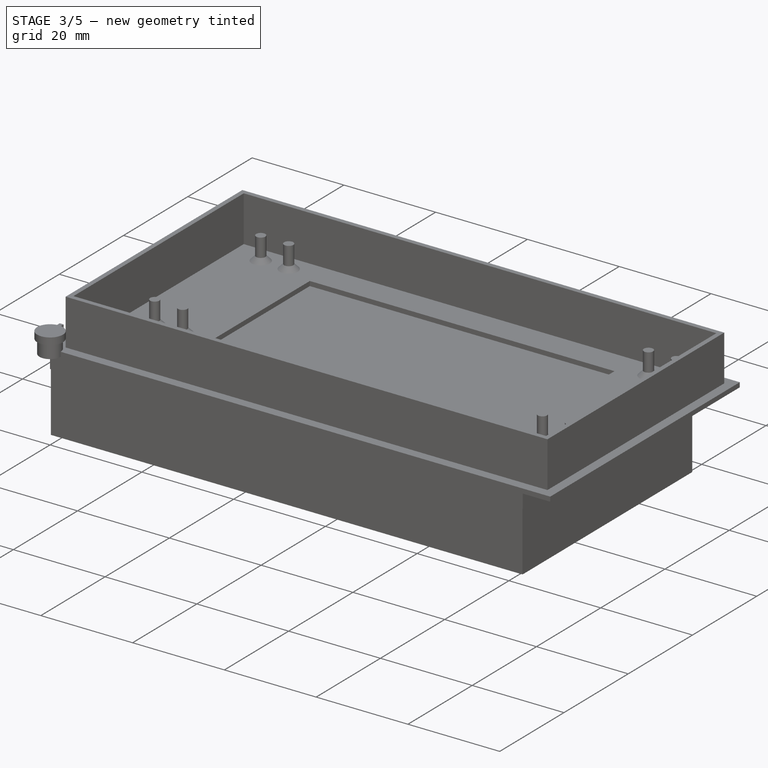
[diagram: stage 3 of 5 — iso view after this stage's code; geometry added in this stage tinted green]
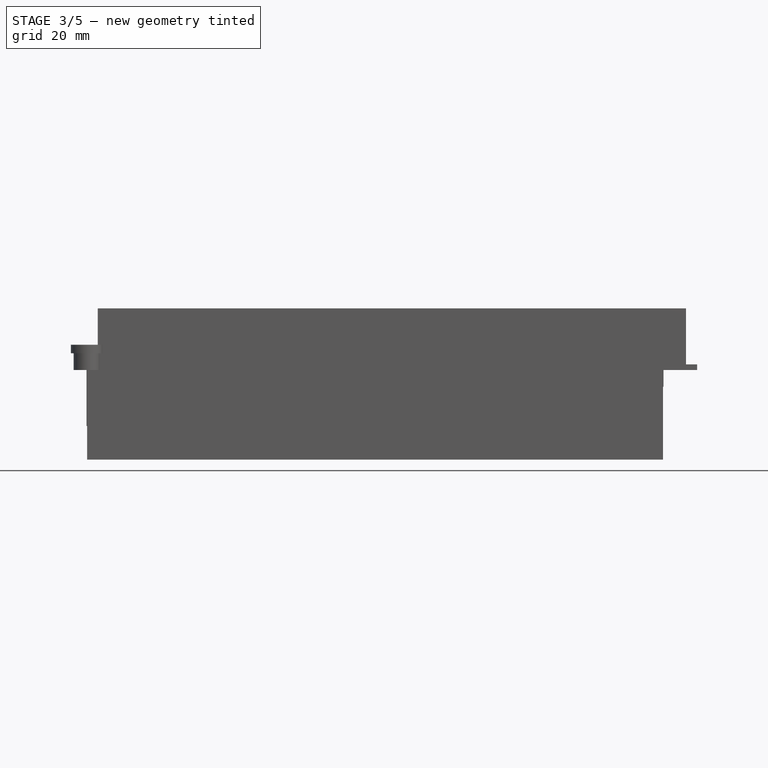
[diagram: stage 3 of 5 — front view after this stage's code; geometry added in this stage tinted green]
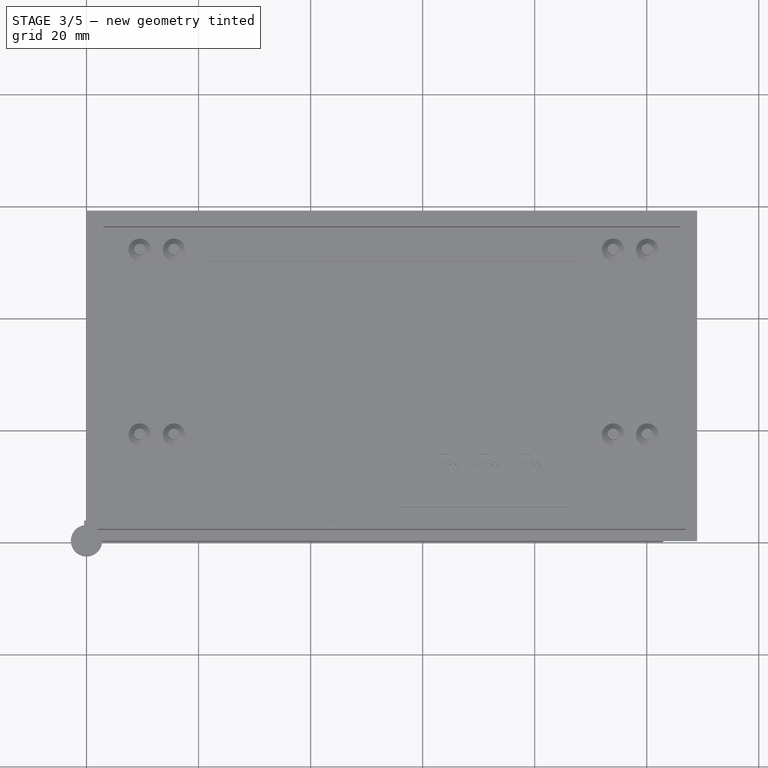
[diagram: stage 3 of 5 — top view after this stage's code; geometry added in this stage tinted green]
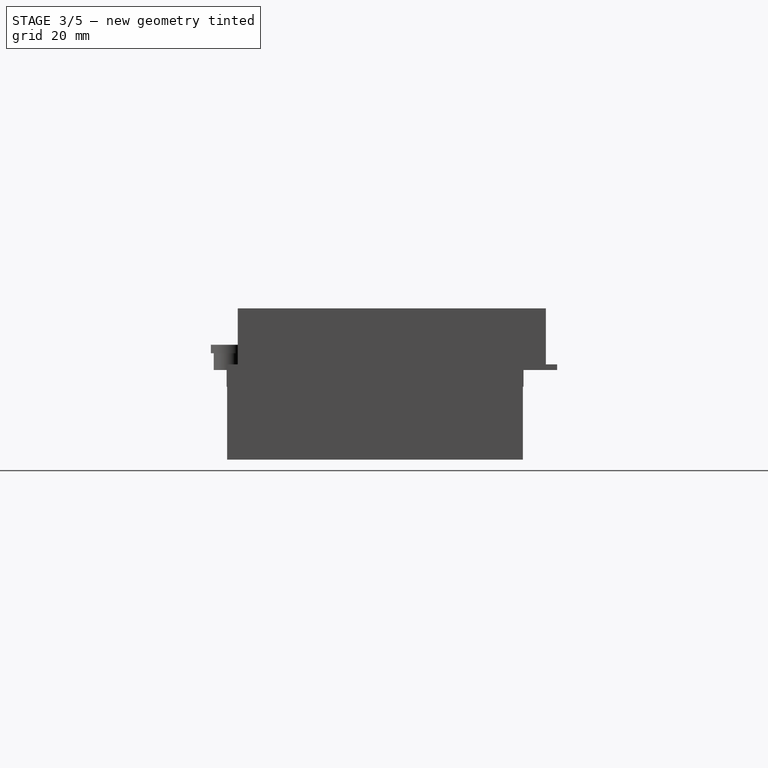
[diagram: stage 3 of 5 — right view after this stage's code; geometry added in this stage tinted green]
FEATURE [PartDesign::Body] Body011  label="Case Back - 1.54 - Buttons"
  Group = -> [Sketch033,Pad022,Sketch034,Hole003,Sketch035,Pad023,Sketch036,Pad024,Sketch038,Pad025,Sketch,Pocket005,Sketch039,Pad026,Sketch042,Pad029]
  Origin = -> Origin011
  Placement = pos=(3,3,17) rot=(0,0,1;0rad)
  Tip = -> Pad029
FEATURE [Sketcher::SketchObject] Sketch043
  FullyConstrained = true
  MapMode = 5
  Support = -> [XY_Plane012]
  sketch-geometry (1):
    g0: Circle CenterX=0 CenterY=0 CenterZ=0 NormalX=0 NormalY=0 NormalZ=1 AngleXU=0 Radius=2.3
  constraints (2):
    c: Coincident(g0,g-1)
    c: Radius(g0) = 2.3
FEATURE [PartDesign::Pad] Pad030
  Direction = (0,0,1)
  Length = 3
  Length2 = 10
  Profile = -> Sketch043
  ReferenceAxis = -> Sketch043 [N_Axis]
  Type = 0
FEATURE [Sketcher::SketchObject] Sketch044
  ExternalGeometry = -> [Pad030]
  FullyConstrained = true
  MapMode = 5
  Placement = pos=(0,0,3) rot=(0,0,1;0rad)
  Support = -> [Pad030]
  sketch-geometry (4):
    g0: LineSegment StartX=0.425 StartY=2.76756 StartZ=0 EndX=0.425 EndY=3.61756 EndZ=0
    g1: LineSegment StartX=0.425 StartY=3.61756 StartZ=0 EndX=-0.425 EndY=3.61756 EndZ=0
    g2: LineSegment StartX=-0.425 StartY=3.61756 StartZ=0 EndX=-0.425 EndY=2.76756 EndZ=0
    g3: ArcOfCircle CenterX=0 CenterY=0 CenterZ=0 NormalX=0 NormalY=0 NormalZ=1 AngleXU=0 Radius=2.8 StartAngle=1.72317 EndAngle=7.70161
  constraints (12):
    c: Coincident(g0,g1)
    c: Coincident(g1,g2)
    c: Horizontal(g1)
    c: Vertical(g0)
    c: Vertical(g2)
    c: DistanceX(g2,g0) = 0.85
    c: DistanceY(g2,g2) = 0.85
    c: Coincident(g3,g-3)
    c: Coincident(g3,g0)
    c: Coincident(g2,g3)
    c: Radius(g3) = 2.8
    c: Horizontal(g0,g2)
FEATURE [PartDesign::Pad] Pad031
  BaseFeature = -> Pad030
  Direction = (0,0,1)
  Length = 1.5
  Length2 = 10
  Profile = -> Sketch044
  ReferenceAxis = -> Sketch044 [N_Axis]
  Type = 0
FEATURE [Sketcher::SketchObject] Sketch045
  FullyConstrained = true
  MapMode = 5
  Support = -> [XY_Plane012]
  sketch-geometry (3):
    g0: LineSegment StartX=-1.44338 StartY=-0.9 StartZ=0 EndX=0 EndY=1.6 EndZ=0
    g1: LineSegment StartX=0 StartY=1.6 StartZ=0 EndX=1.44338 EndY=-0.9 EndZ=0
    g2: LineSegment StartX=1.44338 StartY=-0.9 StartZ=0 EndX=-1.44338 EndY=-0.9 EndZ=0
  constraints (9):
    c: Coincident(g0,g1)
    c: Coincident(g2,g0)
    c: Horizontal(g2)
    c: DistanceY(g1,g0) = 2.5
    c: Coincident(g2,g1)
    c: Angle(g0,g1) = 1.0472
    c: Equal(g0,g1)
    c: PointOnObject(g0,g-2)
    c: DistanceY(g-1,g0) = 1.6
FEATURE [PartDesign::Pocket] Pocket006
  BaseFeature = -> Pad031
  Direction = (0,0,-1)
  Length = 0.6
  Length2 = 5
  Profile = -> Sketch045
  ReferenceAxis = -> Sketch045 [N_Axis]
  Reversed = true
  Type = 0
FEATURE [PartDesign::Body] Body012  label="Button - Up"
  Group = -> [Sketch043,Pad030,Sketch044,Pad031,Sketch045,Pocket006,Chamfer]
  Origin = -> Origin012
  Placement = pos=(63.6,11.5,-1.5) rot=(0,0,1;0rad)
  Tip = -> Chamfer
FEATURE [Sketcher::SketchObject] Sketch046
  FullyConstrained = true
  MapMode = 5
  Support = -> [XY_Plane013]
  sketch-geometry (1):
    g0: Circle CenterX=0 CenterY=0 CenterZ=0 NormalX=0 NormalY=0 NormalZ=1 AngleXU=0 Radius=2.3
  constraints (2):
    c: Coincident(g0,g-1)
    c: Radius(g0) = 2.3
FEATURE [PartDesign::Pad] Pad032
  Direction = (0,0,1)
  Length = 3
  Length2 = 10
  Profile = -> Sketch046
  ReferenceAxis = -> Sketch046 [N_Axis]
  Type = 0
FEATURE [Sketcher::SketchObject] Sketch047
  ExternalGeometry = -> [Pad032]
  FullyConstrained = true
  MapMode = 5
  Placement = pos=(0,0,3) rot=(0,0,1;0rad)
  Support = -> [Pad032]
  sketch-geometry (4):
    g0: LineSegment StartX=0.425 StartY=2.76756 StartZ=0 EndX=0.425 EndY=3.61756 EndZ=0
    g1: LineSegment StartX=0.425 StartY=3.61756 StartZ=0 EndX=-0.425 EndY=3.61756 EndZ=0
    g2: LineSegment StartX=-0.425 StartY=3.61756 StartZ=0 EndX=-0.425 EndY=2.76756 EndZ=0
    g3: ArcOfCircle CenterX=0 CenterY=0 CenterZ=0 NormalX=0 NormalY=0 NormalZ=1 AngleXU=0 Radius=2.8 StartAngle=1.72317 EndAngle=7.70161
  constraints (12):
    c: Coincident(g0,g1)
    c: Coincident(g1,g2)
    c: Horizontal(g1)
    c: Vertical(g0)
    c: Vertical(g2)
    c: DistanceX(g2,g0) = 0.85
    c: DistanceY(g2,g2) = 0.85
    c: Coincident(g3,g-3)
    c: Coincident(g3,g0)
    c: Coincident(g2,g3)
    c: Radius(g3) = 2.8
    c: Horizontal(g0,g2)
FEATURE [PartDesign::Pad] Pad033
  BaseFeature = -> Pad032
  Direction = (0,0,1)
  Length = 1.5
  Length2 = 10
  Profile = -> Sketch047
  ReferenceAxis = -> Sketch047 [N_Axis]
  Type = 0
FEATURE [Sketcher::SketchObject] Sketch048
  FullyConstrained = true
  MapMode = 5
  Support = -> [XY_Plane013]
  sketch-geometry (3):
    g0: LineSegment StartX=1.44338 StartY=0.9 StartZ=0 EndX=0 EndY=-1.6 EndZ=0
    g1: LineSegment StartX=0 StartY=-1.6 StartZ=0 EndX=-1.44338 EndY=0.9 EndZ=0
    g2: LineSegment StartX=-1.44338 StartY=0.9 StartZ=0 EndX=1.44338 EndY=0.9 EndZ=0
  constraints (9):
    c: Coincident(g0,g1)
    c: Coincident(g2,g0)
    c: Horizontal(g2)
    c: DistanceY(g1,g0) = -2.5
    c: Coincident(g2,g1)
    c: Angle(g0,g1) = 1.0472
    c: Equal(g0,g1)
    c: PointOnObject(g0,g-2)
    c: DistanceY(g-1,g0) = -1.6
FEATURE [PartDesign::Pocket] Pocket007
  BaseFeature = -> Pad033
  Direction = (0,0,-1)
  Length = 0.6
  Length2 = 5
  Profile = -> Sketch048
  ReferenceAxis = -> Sketch048 [N_Axis]
  Reversed = true
  Type = 0
FEATURE [PartDesign::Chamfer] Chamfer001
  Angle = 45
  Base = -> Pocket007 [Edge18,Edge16,Edge17,Edge15]
  BaseFeature = -> Pocket007
  ChamferType = 0
  FlipDirection = false
  Size = 0.1
  Size2 = 1
  SupportTransform = false
  UseAllEdges = false
FEATURE [PartDesign::Body] Body013  label="Button - Down"
  Group = -> [Sketch046,Pad032,Sketch047,Pad033,Sketch048,Pocket007,Chamfer001]
  Origin = -> Origin013
  Placement = pos=(63.6,11.5,-1.5) rot=(0,0,1;0rad)
  Tip = -> Chamfer001
FEATURE [Sketcher::SketchObject] Sketch049
  FullyConstrained = true
  MapMode = 5
  Support = -> [XY_Plane014]
  sketch-geometry (1):
    g0: Circle CenterX=0 CenterY=0 CenterZ=0 NormalX=0 NormalY=0 NormalZ=1 AngleXU=0 Radius=2.3
  constraints (2):
    c: Coincident(g0,g-1)
    c: Radius(g0) = 2.3
FEATURE [PartDesign::Pad] Pad034
  Direction = (0,0,1)
  Length = 3
  Length2 = 10
  Profile = -> Sketch049
  ReferenceAxis = -> Sketch049 [N_Axis]
  Type = 0
FEATURE [Sketcher::SketchObject] Sketch050
  ExternalGeometry = -> [Pad034]
  FullyConstrained = true
  MapMode = 5
  Placement = pos=(0,0,3) rot=(0,0,1;0rad)
  Support = -> [Pad034]
  sketch-geometry (4):
    g0: LineSegment StartX=0.425 StartY=2.76756 StartZ=0 EndX=0.425 EndY=3.61756 EndZ=0
    g1: LineSegment StartX=0.425 StartY=3.61756 StartZ=0 EndX=-0.425 EndY=3.61756 EndZ=0
    g2: LineSegment StartX=-0.425 StartY=3.61756 StartZ=0 EndX=-0.425 EndY=2.76756 EndZ=0
    g3: ArcOfCircle CenterX=0 CenterY=0 CenterZ=0 NormalX=0 NormalY=0 NormalZ=1 AngleXU=0 Radius=2.8 StartAngle=1.72317 EndAngle=7.70161
  constraints (12):
    c: Coincident(g0,g1)
    c: Coincident(g1,g2)
    c: Horizontal(g1)
    c: Vertical(g0)
    c: Vertical(g2)
    c: DistanceX(g2,g0) = 0.85
    c: DistanceY(g2,g2) = 0.85
    c: Coincident(g3,g-3)
    c: Coincident(g3,g0)
    c: Coincident(g2,g3)
    c: Radius(g3) = 2.8
    c: Horizontal(g0,g2)
FEATURE [PartDesign::Pad] Pad035
  BaseFeature = -> Pad034
  Direction = (0,0,1)
  Length = 1.5
  Length2 = 10
  Profile = -> Sketch050
  ReferenceAxis = -> Sketch050 [N_Axis]
  Type = 0
FEATURE [Sketcher::SketchObject] Sketch051
  FullyConstrained = true
  MapMode = 5
  Support = -> [XY_Plane014]
  sketch-geometry (3):
    g0: LineSegment StartX=0.9 StartY=-1.44338 StartZ=0 EndX=-1.6 EndY=0 EndZ=0
    g1: LineSegment StartX=-1.6 StartY=0 StartZ=0 EndX=0.9 EndY=1.44338 EndZ=0
    g2: LineSegment StartX=0.9 StartY=1.44338 StartZ=0 EndX=0.9 EndY=-1.44338 EndZ=0
  constraints (9):
    c: Coincident(g0,g1)
    c: Coincident(g2,g0)
    c: Coincident(g2,g1)
    c: Angle(g0,g1) = 1.0472
    c: Equal(g0,g1)
    c: PointOnObject(g0,g-1)
    c: Vertical(g2)
    c: DistanceX(g0,g-1) = 1.6
    c: DistanceX(g0,g1) = 2.5
FEATURE [PartDesign::Pocket] Pocket008
  BaseFeature = -> Pad035
  Direction = (0,0,-1)
  Length = 0.6
  Length2 = 5
  Profile = -> Sketch051
  ReferenceAxis = -> Sketch051 [N_Axis]
  Reversed = true
  Type = 0
FEATURE [PartDesign::Chamfer] Chamfer002
  Angle = 45
  Base = -> Pocket008 [Edge18,Edge16,Edge17,Edge15]
  BaseFeature = -> Pocket008
  ChamferType = 0
  FlipDirection = false
  Size = 0.1
  Size2 = 1
  SupportTransform = false
  UseAllEdges = false
FEATURE [PartDesign::Body] Body014  label="Button - Left"
  Group = -> [Sketch049,Pad034,Sketch050,Pad035,Sketch051,Pocket008,Chamfer002]
  Origin = -> Origin014
  Placement = pos=(63.6,11.5,-1.5) rot=(0,0,1;0rad)
  Tip = -> Chamfer002
FEATURE [Sketcher::SketchObject] Sketch052
  FullyConstrained = true
  MapMode = 5
  Support = -> [XY_Plane015]
  sketch-geometry (1):
    g0: Circle CenterX=0 CenterY=0 CenterZ=0 NormalX=0 NormalY=0 NormalZ=1 AngleXU=0 Radius=2.3
  constraints (2):
    c: Coincident(g0,g-1)
    c: Radius(g0) = 2.3
FEATURE [PartDesign::Pad] Pad036
  Direction = (0,0,1)
  Length = 3
  Length2 = 10
  Profile = -> Sketch052
  ReferenceAxis = -> Sketch052 [N_Axis]
  Type = 0
FEATURE [Sketcher::SketchObject] Sketch053
  ExternalGeometry = -> [Pad036]
  FullyConstrained = true
  MapMode = 5
  Placement = pos=(0,0,3) rot=(0,0,1;0rad)
  Support = -> [Pad036]
  sketch-geometry (4):
    g0: LineSegment StartX=0.425 StartY=2.76756 StartZ=0 EndX=0.425 EndY=3.61756 EndZ=0
    g1: LineSegment StartX=0.425 StartY=3.61756 StartZ=0 EndX=-0.425 EndY=3.61756 EndZ=0
    g2: LineSegment StartX=-0.425 StartY=3.61756 StartZ=0 EndX=-0.425 EndY=2.76756 EndZ=0
    g3: ArcOfCircle CenterX=0 CenterY=0 CenterZ=0 NormalX=0 NormalY=0 NormalZ=1 AngleXU=0 Radius=2.8 StartAngle=1.72317 EndAngle=7.70161
  constraints (12):
    c: Coincident(g0,g1)
    c: Coincident(g1,g2)
    c: Horizontal(g1)
    c: Vertical(g0)
    c: Vertical(g2)
    c: DistanceX(g2,g0) = 0.85
    c: DistanceY(g2,g2) = 0.85
    c: Coincident(g3,g-3)
    c: Coincident(g3,g0)
    c: Coincident(g2,g3)
    c: Radius(g3) = 2.8
    c: Horizontal(g0,g2)
FEATURE [PartDesign::Pad] Pad037
  BaseFeature = -> Pad036
  Direction = (0,0,1)
  Length = 1.5
  Length2 = 10
  Profile = -> Sketch053
  ReferenceAxis = -> Sketch053 [N_Axis]
  Type = 0
FEATURE [Sketcher::SketchObject] Sketch054
  FullyConstrained = true
  MapMode = 5
  Support = -> [XY_Plane015]
  sketch-geometry (3):
    g0: LineSegment StartX=-0.9 StartY=1.44338 StartZ=0 EndX=1.6 EndY=0 EndZ=0
    g1: LineSegment StartX=1.6 StartY=0 StartZ=0 EndX=-0.9 EndY=-1.44338 EndZ=0
    g2: LineSegment StartX=-0.9 StartY=-1.44338 StartZ=0 EndX=-0.9 EndY=1.44338 EndZ=0
  constraints (9):
    c: Coincident(g0,g1)
    c: Coincident(g2,g0)
    c: Coincident(g2,g1)
    c: Angle(g0,g1) = 1.0472
    c: Equal(g0,g1)
    c: PointOnObject(g0,g-1)
    c: Vertical(g2)
    c: DistanceX(g0,g-1) = -1.6
    c: DistanceX(g0,g1) = -2.5
FEATURE [PartDesign::Pocket] Pocket009
  BaseFeature = -> Pad037
  Direction = (0,0,-1)
  Length = 0.6
  Length2 = 5
  Profile = -> Sketch054
  ReferenceAxis = -> Sketch054 [N_Axis]
  Reversed = true
  Type = 0
FEATURE [PartDesign::Chamfer] Chamfer003
  Angle = 45
  Base = -> Pocket009 [Edge18,Edge16,Edge17,Edge15]
  BaseFeature = -> Pocket009
  ChamferType = 0
  FlipDirection = false
  Size = 0.1
  Size2 = 1
  SupportTransform = false
  UseAllEdges = false
FEATURE [Sketcher::SketchObject] Sketch057
  FullyConstrained = true
  MapMode = 5
  Support = -> [XY_Plane016]
  sketch-geometry (4):
    g0: LineSegment StartX=-1.1 StartY=-1.1 StartZ=0 EndX=1.1 EndY=-1.1 EndZ=0
    g1: LineSegment StartX=1.1 StartY=-1.1 StartZ=0 EndX=1.1 EndY=1.1 EndZ=0
    g2: LineSegment StartX=1.1 StartY=1.1 StartZ=0 EndX=-1.1 EndY=1.1 EndZ=0
    g3: LineSegment StartX=-1.1 StartY=1.1 StartZ=0 EndX=-1.1 EndY=-1.1 EndZ=0
  constraints (10):
    c: Coincident(g0,g1)
    c: Coincident(g1,g2)
    c: Coincident(g2,g3)
    c: Coincident(g3,g0)
    c: Horizontal(g0)
    c: Vertical(g1)
    c: Symmetric(g2,g1,g-2)
    c: Symmetric(g2,g0,g-1)
    c: DistanceY(g3,g3) = 2.2
    c: DistanceX(g2,g2) = 2.2
FEATURE [PartDesign::Pocket] Pocket010
  BaseFeature = -> Pad039
  Direction = (0,0,-1)
  Length = 0.6
  Length2 = 5
  Profile = -> Sketch057
  ReferenceAxis = -> Sketch057 [N_Axis]
  Reversed = true
  Type = 0
FEATURE [PartDesign::Chamfer] Chamfer004
  Angle = 45
  Base = -> Pocket010 [Edge18,Edge16,Edge17,Edge15,Edge19]
  BaseFeature = -> Pocket010
  ChamferType = 0
  FlipDirection = false
  Size = 0.1
  Size2 = 1
  SupportTransform = false
  UseAllEdges = false
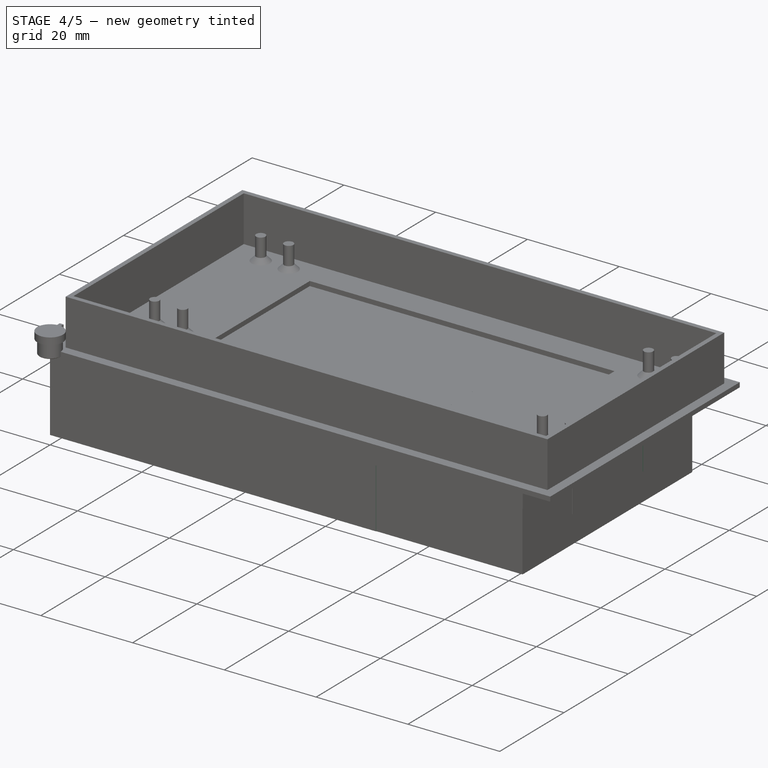
[diagram: stage 4 of 5 — iso view after this stage's code; geometry added in this stage tinted green]
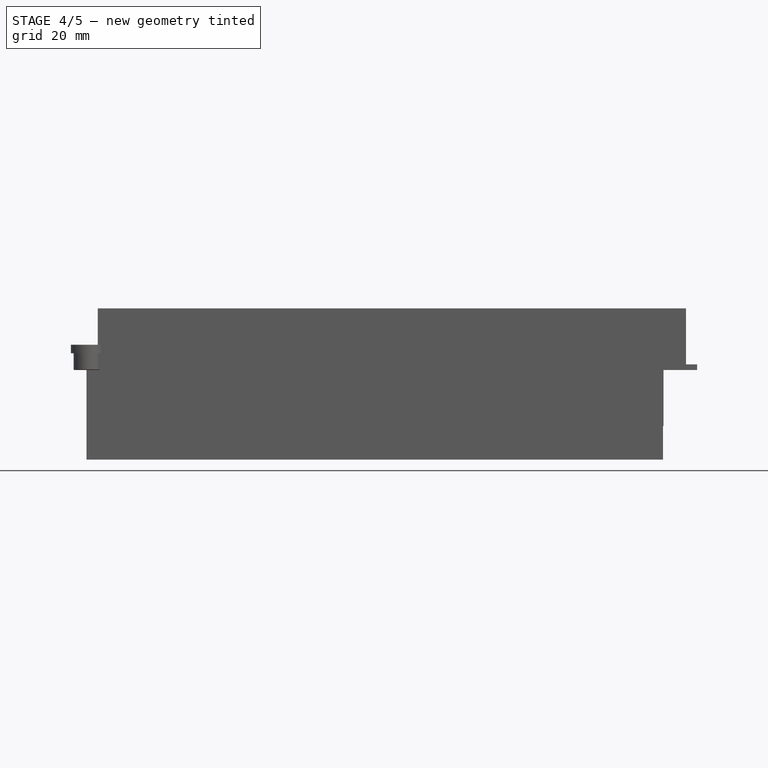
[diagram: stage 4 of 5 — front view after this stage's code; geometry added in this stage tinted green]
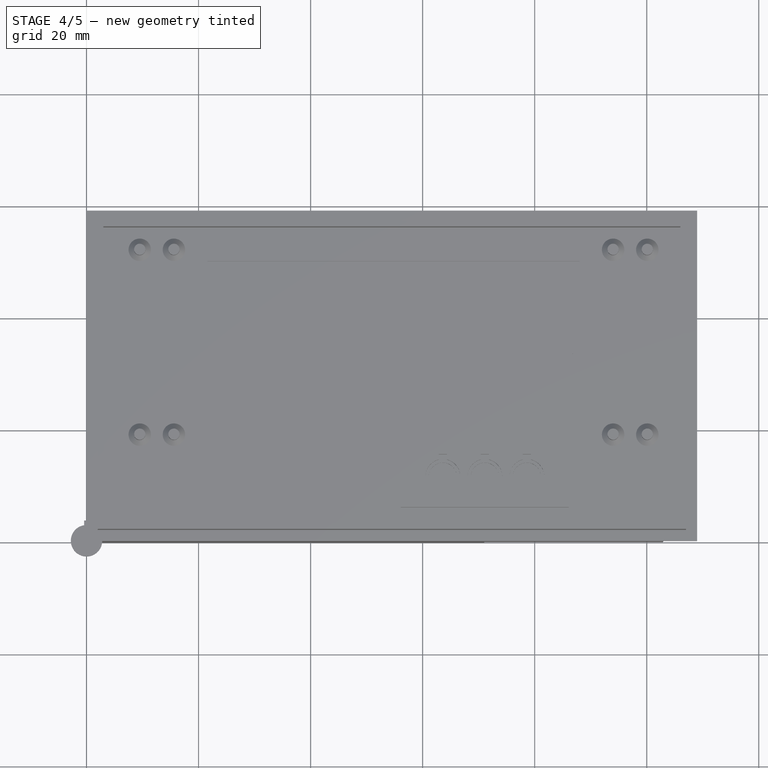
[diagram: stage 4 of 5 — top view after this stage's code; geometry added in this stage tinted green]
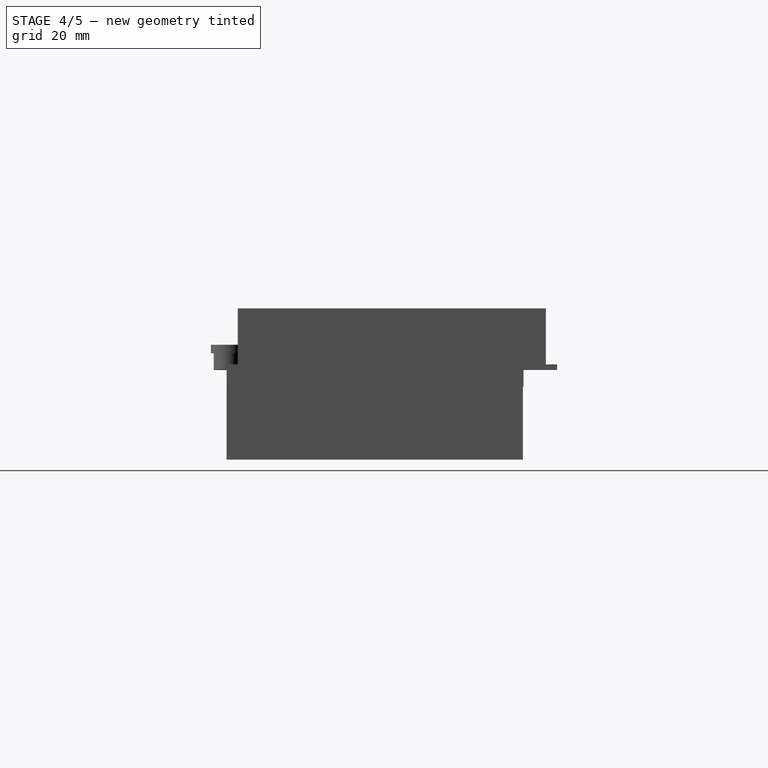
[diagram: stage 4 of 5 — right view after this stage's code; geometry added in this stage tinted green]
FEATURE [Sketcher::SketchObject] Sketch022
  FullyConstrained = true
  MapMode = 5
  Support = -> [XY_Plane009]
  sketch-geometry (4):
    g0: LineSegment StartX=0 StartY=0 StartZ=0 EndX=103 EndY=0 EndZ=0
    g1: LineSegment StartX=103 StartY=0 StartZ=0 EndX=103 EndY=53 EndZ=0
    g2: LineSegment StartX=103 StartY=53 StartZ=0 EndX=0 EndY=53 EndZ=0
    g3: LineSegment StartX=0 StartY=53 StartZ=0 EndX=0 EndY=0 EndZ=0
  constraints (11):
    c: Coincident(g0,g1)
    c: Coincident(g1,g2)
    c: Coincident(g2,g3)
    c: Coincident(g3,g0)
    c: Horizontal(g0)
    c: Horizontal(g2)
    c: Vertical(g1)
    c: Vertical(g3)
    c: DistanceX(g2,g2) = 103
    c: DistanceY(g3,g3) = 53
    c: Coincident(g0,g-1)
FEATURE [PartDesign::Pad] Pad014
  Direction = (0,0,1)
  Length = 3
  Length2 = 10
  Profile = -> Sketch022
  ReferenceAxis = -> Sketch022 [N_Axis]
  Reversed = true
  Type = 0
FEATURE [Sketcher::SketchObject] Sketch023
  AttachmentOffset = pos=(0,0,-3) rot=(0,0,1;0rad)
  ExternalGeometry = -> [Sketch022]
  FullyConstrained = true
  MapMode = 5
  Placement = pos=(0,0,-3) rot=(0,0,1;0rad)
  Support = -> [XY_Plane009]
  sketch-geometry (2):
    g0: Circle CenterX=9 CenterY=33 CenterZ=0 NormalX=0 NormalY=0 NormalZ=1 AngleXU=0 Radius=5
    g1: Circle CenterX=89 CenterY=33 CenterZ=0 NormalX=0 NormalY=0 NormalZ=1 AngleXU=0 Radius=5
  constraints (6):
    c: Horizontal(g1,g0)
    c: Equal(g0,g1)
    c: Radius(g0) = 5
    c: DistanceX(g0,g1) = 80
    c: DistanceX(g-3,g0) = 9
    c: DistanceY(g0,g-3) = 20
FEATURE [PartDesign::Hole] Hole002
  BaseFeature = -> Pad014
  CustomThreadClearance = 0
  Depth = 25
  DepthType = 0
  Diameter = 4.5
  DrillForDepth = false
  DrillPoint = 1
  DrillPointAngle = 118
  HoleCutCountersinkAngle = 90
  HoleCutCustomValues = false
  HoleCutDepth = 0
  HoleCutDiameter = 6.1
  HoleCutType = 2
  ModelThread = false
  Profile = -> Sketch023
  Reversed = true
  Tapered = false
  TaperedAngle = 90
  ThreadClass = 0
  ThreadDepth = 25
  ThreadDepthType = 0
  ThreadDirection = 0
  ThreadFit = 0
  ThreadSize = 11
  ThreadType = 1
  Threaded = false
  UseCustomThreadClearance = false
FEATURE [Sketcher::SketchObject] Sketch024
  AttachmentOffset = pos=(0,0,-3) rot=(0,0,1;0rad)
  ExternalGeometry = -> [Hole002]
  FullyConstrained = true
  MapMode = 5
  Placement = pos=(0,0,-3) rot=(0,0,1;0rad)
  Support = -> [XY_Plane009]
  sketch-geometry (12):
    g0: LineSegment StartX=103 StartY=49.5 StartZ=0 EndX=62 EndY=49.5 EndZ=0
    g1: LineSegment StartX=62 StartY=49.5 StartZ=0 EndX=62 EndY=44.5 EndZ=0
    g2: LineSegment StartX=62 StartY=44.5 StartZ=0 EndX=63 EndY=44.5 EndZ=0
    g3: LineSegment StartX=63 StartY=44.5 StartZ=0 EndX=63 EndY=48.5 EndZ=0
    g4: LineSegment StartX=63 StartY=48.5 StartZ=0 EndX=102 EndY=48.5 EndZ=0
    g5: LineSegment StartX=102 StartY=48.5 StartZ=0 EndX=102 EndY=16.5 EndZ=0
    g6: LineSegment StartX=102 StartY=16.5 StartZ=0 EndX=63 EndY=16.5 EndZ=0
    g7: LineSegment StartX=63 StartY=16.5 StartZ=0 EndX=63 EndY=20.5 EndZ=0
    g8: LineSegment StartX=63 StartY=20.5 StartZ=0 EndX=62 EndY=20.5 EndZ=0
    g9: LineSegment StartX=62 StartY=20.5 StartZ=0 EndX=62 EndY=15.5 EndZ=0
    g10: LineSegment StartX=62 StartY=15.5 StartZ=0 EndX=103 EndY=15.5 EndZ=0
    g11: LineSegment StartX=103 StartY=15.5 StartZ=0 EndX=103 EndY=49.5 EndZ=0
  constraints (36):
    c: Horizontal(g0)
    c: Coincident(g0,g1)
    c: Vertical(g1)
    c: Coincident(g1,g2)
    c: Horizontal(g2)
    c: Coincident(g2,g3)
    c: Vertical(g3)
    c: Coincident(g3,g4)
    c: Horizontal(g4)
    c: Coincident(g4,g5)
    c: Vertical(g5)
    c: Coincident(g5,g6)
    c: Horizontal(g6)
    c: Coincident(g6,g7)
    c: Vertical(g7)
    c: Coincident(g7,g8)
    c: Horizontal(g8)
    c: Coincident(g8,g9)
    c: Vertical(g9)
    c: Coincident(g9,g10)
    c: Horizontal(g10)
    c: Coincident(g10,g11)
    c: Coincident(g11,g0)
    c: Vertical(g11)
    c: DistanceX(g4,g0) = 1
    c: DistanceY(g3,g0) = 1
    c: DistanceY(g9,g6) = 1
    c: DistanceX(g8,g8) = 1
    c: Vertical(g7,g2)
    c: Equal(g2,g8)
    c: DistanceX(g4,g4) = 39
    c: DistanceY(g5,g5) = 32
    c: Equal(g3,g7)
    c: DistanceY(g3,g3) = 4
    c: PointOnObject(g0,g-3)
    c: DistanceY(g0,g-3) = 3.5
FEATURE [PartDesign::Pad] Pad015
  BaseFeature = -> Hole002
  Direction = (0,0,1)
  Length = 7
  Length2 = 10
  Profile = -> Sketch024
  ReferenceAxis = -> Sketch024 [N_Axis]
  Reversed = true
  Type = 0
FEATURE [Sketcher::SketchObject] Sketch025
  AttachmentOffset = pos=(0,0,-3) rot=(0,0,1;0rad)
  FullyConstrained = true
  MapMode = 5
  Placement = pos=(0,0,-3) rot=(0,0,1;0rad)
  Support = -> [XY_Plane009]
  sketch-geometry (8):
    g0: LineSegment StartX=0.1 StartY=0.1 StartZ=0 EndX=102.9 EndY=0.1 EndZ=0
    g1: LineSegment StartX=102.9 StartY=0.1 StartZ=0 EndX=102.9 EndY=52.9 EndZ=0
    g2: LineSegment StartX=102.9 StartY=52.9 StartZ=0 EndX=0.1 EndY=52.9 EndZ=0
    g3: LineSegment StartX=0.1 StartY=52.9 StartZ=0 EndX=0.1 EndY=0.1 EndZ=0
    g4: LineSegment StartX=1.1 StartY=51.9 StartZ=0 EndX=101.9 EndY=51.9 EndZ=0
    g5: LineSegment StartX=101.9 StartY=51.9 StartZ=0 EndX=101.9 EndY=1.1 EndZ=0
    g6: LineSegment StartX=101.9 StartY=1.1 StartZ=0 EndX=1.1 EndY=1.1 EndZ=0
    g7: LineSegment StartX=1.1 StartY=1.1 StartZ=0 EndX=1.1 EndY=51.9 EndZ=0
  constraints (24):
    c: Coincident(g0,g1)
    c: Coincident(g1,g2)
    c: Coincident(g2,g3)
    c: Coincident(g3,g0)
    c: Horizontal(g0)
    c: Horizontal(g2)
    c: Vertical(g1)
    c: Vertical(g3)
    c: Coincident(g4,g5)
    c: Coincident(g5,g6)
    c: Coincident(g6,g7)
    c: Coincident(g7,g4)
    c: Horizontal(g4)
    c: Horizontal(g6)
    c: Vertical(g5)
    c: Vertical(g7)
    c: DistanceX(g0,g6) = 1
    c: DistanceY(g0,g6) = 1
    c: DistanceY(g4,g1) = 1
    c: DistanceX(g4,g1) = 1
    c: DistanceY(g3,g3) = 52.8
    c: DistanceX(g0,g0) = 102.8
    c: DistanceX(g-1,g0) = 0.1
    c: DistanceY(g-1,g0) = 0.1
FEATURE [PartDesign::Pad] Pad016
  BaseFeature = -> Pad015
  Direction = (0,0,1)
  Length = 13
  Length2 = 10
  Profile = -> Sketch025
  ReferenceAxis = -> Sketch025 [N_Axis]
  Reversed = true
  Type = 0
FEATURE [Sketcher::SketchObject] Sketch027
  AttachmentOffset = pos=(0,0,-3) rot=(0,0,1;0rad)
  FullyConstrained = true
  MapMode = 5
  Placement = pos=(0,0,-3) rot=(0,0,1;0rad)
  Support = -> [XY_Plane009]
  sketch-geometry (10):
    g0: LineSegment StartX=52 StartY=1 StartZ=0 EndX=84 EndY=1 EndZ=0
    g1: LineSegment StartX=84 StartY=1 StartZ=0 EndX=84 EndY=16.5 EndZ=0
    g2: LineSegment StartX=52 StartY=7 StartZ=0 EndX=52 EndY=1 EndZ=0
    g3: LineSegment StartX=53 StartY=2 StartZ=0 EndX=83 EndY=2 EndZ=0
    g4: LineSegment StartX=83 StartY=2 StartZ=0 EndX=83 EndY=15 EndZ=0
    g5: LineSegment StartX=53 StartY=2 StartZ=0 EndX=53 EndY=7 EndZ=0
    g6: LineSegment StartX=53 StartY=7 StartZ=0 EndX=52 EndY=7 EndZ=0
    g7: LineSegment StartX=84 StartY=16.5 StartZ=0 EndX=62 EndY=16.5 EndZ=0
    g8: LineSegment StartX=62 StartY=16.5 StartZ=0 EndX=62 EndY=15 EndZ=0
    g9: LineSegment StartX=62 StartY=15 StartZ=0 EndX=83 EndY=15 EndZ=0
  constraints (30):
    c: Coincident(g0,g1)
    c: Coincident(g2,g0)
    c: Horizontal(g0)
    c: Vertical(g1)
    c: Vertical(g2)
    c: Coincident(g3,g4)
    c: Horizontal(g3)
    c: Vertical(g4)
    c: DistanceX(g0,g3) = 1
    c: DistanceY(g0,g3) = 1
    c: DistanceY(g4,g1) = 1.5
    c: DistanceX(g4,g1) = 1
    c: DistanceY(g-1,g0) = 1
    c: DistanceX(g-1,g0) = 52
    c: DistanceY(g4,g4) = 13
    c: Coincident(g3,g5)
    c: Vertical(g5)
    c: Coincident(g5,g6)
    c: Coincident(g6,g2)
    c: Horizontal(g6)
    c: DistanceY(g5,g5) = 5
    c: Coincident(g1,g7)
    c: Horizontal(g7)
    c: Coincident(g7,g8)
    c: Vertical(g8)
    c: Coincident(g8,g9)
    c: Coincident(g9,g4)
    c: Horizontal(g9)
    c: DistanceX(g9,g9) = 21
    c: DistanceX(g3,g3) = 30
FEATURE [PartDesign::Pad] Pad017
  BaseFeature = -> Pad016
  Direction = (0,0,1)
  Length = 7
  Length2 = 10
  Profile = -> Sketch027
  ReferenceAxis = -> Sketch027 [N_Axis]
  Reversed = true
  Type = 0
FEATURE [Sketcher::SketchObject] Sketch026
  FullyConstrained = true
  MapMode = 5
  Placement = pos=(103,0,0) rot=(0.57735,0.57735,0.57735;2.0944rad)
  Support = -> [Pad017]
  sketch-geometry (4):
    g0: LineSegment StartX=27.5 StartY=-11 StartZ=0 EndX=37.5 EndY=-11 EndZ=0
    g1: LineSegment StartX=37.5 StartY=-11 StartZ=0 EndX=37.5 EndY=-3 EndZ=0
    g2: LineSegment StartX=37.5 StartY=-3 StartZ=0 EndX=27.5 EndY=-3 EndZ=0
    g3: LineSegment StartX=27.5 StartY=-3 StartZ=0 EndX=27.5 EndY=-11 EndZ=0
  constraints (12):
    c: Coincident(g0,g1)
    c: Coincident(g1,g2)
    c: Coincident(g2,g3)
    c: Coincident(g3,g0)
    c: Horizontal(g0)
    c: Horizontal(g2)
    c: Vertical(g1)
    c: Vertical(g3)
    c: DistanceX(g2,g2) = 10
    c: DistanceY(g3,g3) = 8
    c: DistanceY(g2,g-1) = 3
    c: DistanceX(g-1,g2) = 27.5
FEATURE [PartDesign::Pocket] Pocket003
  BaseFeature = -> Pad017
  Direction = (-1,0,0)
  Length = 5
  Length2 = 5
  Profile = -> Sketch026
  ReferenceAxis = -> Sketch026 [N_Axis]
  Type = 0
FEATURE [PartDesign::Body] Body010  label="Case Front - 1.54 - Buttons"
  Group = -> [Sketch028,Pad018,Sketch029,Pad019,Sketch030,Pad020,Sketch031,Pocket004,Sketch032,Pad021]
  Origin = -> Origin010
  Tip = -> Pad021
FEATURE [Sketcher::SketchObject] Sketch033
  FullyConstrained = true
  MapMode = 5
  Support = -> [XY_Plane011]
  sketch-geometry (4):
    g0: LineSegment StartX=0 StartY=0 StartZ=0 EndX=71 EndY=0 EndZ=0
    g1: LineSegment StartX=71 StartY=0 StartZ=0 EndX=71 EndY=44 EndZ=0
    g2: LineSegment StartX=71 StartY=44 StartZ=0 EndX=0 EndY=44 EndZ=0
    g3: LineSegment StartX=0 StartY=44 StartZ=0 EndX=0 EndY=0 EndZ=0
  constraints (11):
    c: Coincident(g0,g1)
    c: Coincident(g1,g2)
    c: Coincident(g2,g3)
    c: Coincident(g3,g0)
    c: Horizontal(g0)
    c: Horizontal(g2)
    c: Vertical(g1)
    c: Vertical(g3)
    c: DistanceX(g2,g2) = 71
    c: DistanceY(g3,g3) = 44
    c: Coincident(g0,g-1)
FEATURE [PartDesign::Pad] Pad022
  Direction = (0,0,1)
  Length = 3
  Length2 = 10
  Profile = -> Sketch033
  ReferenceAxis = -> Sketch033 [N_Axis]
  Reversed = true
  Type = 0
FEATURE [Sketcher::SketchObject] Sketch034
  AttachmentOffset = pos=(0,0,-3) rot=(0,0,1;0rad)
  FullyConstrained = true
  MapMode = 5
  Placement = pos=(0,0,-3) rot=(0,0,1;0rad)
  Support = -> [XY_Plane011]
  sketch-geometry (2):
    g0: Circle CenterX=20 CenterY=22.5 CenterZ=0 NormalX=0 NormalY=0 NormalZ=1 AngleXU=0 Radius=5
    g1: Circle CenterX=55 CenterY=22.5 CenterZ=0 NormalX=0 NormalY=0 NormalZ=1 AngleXU=0 Radius=5
  constraints (6):
    c: Horizontal(g1,g0)
    c: Equal(g0,g1)
    c: Radius(g0) = 5
    c: DistanceX(g0,g1) = 35
    c: DistanceX(g-1,g0) = 20
    c: DistanceY(g-1,g0) = 22.5
FEATURE [PartDesign::Hole] Hole003
  BaseFeature = -> Pad022
  CustomThreadClearance = 0
  Depth = 25
  DepthType = 0
  Diameter = 4.5
  DrillForDepth = false
  DrillPoint = 1
  DrillPointAngle = 118
  HoleCutCountersinkAngle = 90
  HoleCutCustomValues = false
  HoleCutDepth = 0
  HoleCutDiameter = 6.1
  HoleCutType = 2
  ModelThread = false
  Profile = -> Sketch034
  Reversed = true
  Tapered = false
  TaperedAngle = 90
  ThreadClass = 0
  ThreadDepth = 25
  ThreadDepthType = 0
  ThreadDirection = 0
  ThreadFit = 0
  ThreadSize = 11
  ThreadType = 1
  Threaded = false
  UseCustomThreadClearance = false
FEATURE [Sketcher::SketchObject] Sketch035
  AttachmentOffset = pos=(0,0,-3) rot=(0,0,1;0rad)
  ExternalGeometry = -> [Hole003]
  FullyConstrained = true
  MapMode = 5
  Placement = pos=(0,0,-3) rot=(0,0,1;0rad)
  Support = -> [XY_Plane011]
  sketch-geometry (12):
    g0: LineSegment StartX=71 StartY=39 StartZ=0 EndX=30 EndY=39 EndZ=0
    g1: LineSegment StartX=30 StartY=39 StartZ=0 EndX=30 EndY=34 EndZ=0
    g2: LineSegment StartX=30 StartY=34 StartZ=0 EndX=31 EndY=34 EndZ=0
    g3: LineSegment StartX=31 StartY=34 StartZ=0 EndX=31 EndY=38 EndZ=0
    g4: LineSegment StartX=31 StartY=38 StartZ=0 EndX=70 EndY=38 EndZ=0
    g5: LineSegment StartX=70 StartY=38 StartZ=0 EndX=70 EndY=6 EndZ=0
    g6: LineSegment StartX=70 StartY=6 StartZ=0 EndX=31 EndY=6 EndZ=0
    g7: LineSegment StartX=31 StartY=6 StartZ=0 EndX=31 EndY=10 EndZ=0
    g8: LineSegment StartX=31 StartY=10 StartZ=0 EndX=30 EndY=10 EndZ=0
    g9: LineSegment StartX=30 StartY=10 StartZ=0 EndX=30 EndY=5 EndZ=0
    g10: LineSegment StartX=30 StartY=5 StartZ=0 EndX=71 EndY=5 EndZ=0
    g11: LineSegment StartX=71 StartY=5 StartZ=0 EndX=71 EndY=39 EndZ=0
  constraints (36):
    c: Horizontal(g0)
    c: Coincident(g0,g1)
    c: Vertical(g1)
    c: Coincident(g1,g2)
    c: Horizontal(g2)
    c: Coincident(g2,g3)
    c: Vertical(g3)
    c: Coincident(g3,g4)
    c: Horizontal(g4)
    c: Coincident(g4,g5)
    c: Vertical(g5)
    c: Coincident(g5,g6)
    c: Horizontal(g6)
    c: Coincident(g6,g7)
    c: Vertical(g7)
    c: Coincident(g7,g8)
    c: Horizontal(g8)
    c: Coincident(g8,g9)
    c: Vertical(g9)
    c: Coincident(g9,g10)
    c: Horizontal(g10)
    c: Coincident(g10,g11)
    c: Coincident(g11,g0)
    c: Vertical(g11)
    c: DistanceX(g4,g0) = 1
    c: DistanceY(g3,g0) = 1
    c: DistanceY(g9,g6) = 1
    c: DistanceX(g8,g8) = 1
    c: Vertical(g7,g2)
    c: Equal(g2,g8)
    c: DistanceX(g4,g4) = 39
    c: DistanceY(g5,g5) = 32
    c: Equal(g3,g7)
    c: DistanceY(g3,g3) = 4
    c: PointOnObject(g0,g-3)
    c: DistanceY(g0,g-3) = 5
FEATURE [PartDesign::Pad] Pad023
  BaseFeature = -> Hole003
  Direction = (0,0,1)
  Length = 7
  Length2 = 10
  Profile = -> Sketch035
  ReferenceAxis = -> Sketch035 [N_Axis]
  Reversed = true
  Type = 0
FEATURE [Sketcher::SketchObject] Sketch036
  AttachmentOffset = pos=(0,0,-3) rot=(0,0,1;0rad)
  ExternalGeometry = -> [Sketch033]
  FullyConstrained = true
  MapMode = 5
  Placement = pos=(0,0,-3) rot=(0,0,1;0rad)
  Support = -> [XY_Plane011]
  sketch-geometry (8):
    g0: LineSegment StartX=0 StartY=0 StartZ=0 EndX=71 EndY=0 EndZ=0
    g1: LineSegment StartX=71 StartY=0 StartZ=0 EndX=71 EndY=44 EndZ=0
    g2: LineSegment StartX=71 StartY=44 StartZ=0 EndX=0 EndY=44 EndZ=0
    g3: LineSegment StartX=0 StartY=44 StartZ=0 EndX=0 EndY=0 EndZ=0
    g4: LineSegment StartX=1 StartY=43 StartZ=0 EndX=70 EndY=43 EndZ=0
    g5: LineSegment StartX=70 StartY=43 StartZ=0 EndX=70 EndY=1 EndZ=0
    g6: LineSegment StartX=70 StartY=1 StartZ=0 EndX=1 EndY=1 EndZ=0
    g7: LineSegment StartX=1 StartY=1 StartZ=0 EndX=1 EndY=43 EndZ=0
  constraints (21):
    c: Coincident(g0,g1)
    c: Coincident(g1,g2)
    c: Coincident(g3,g0)
    c: Horizontal(g0)
    c: Vertical(g1)
    c: Coincident(g4,g5)
    c: Coincident(g5,g6)
    c: Coincident(g6,g7)
    c: Coincident(g7,g4)
    c: Horizontal(g4)
    c: Horizontal(g6)
    c: Vertical(g5)
    c: Vertical(g7)
    c: DistanceX(g0,g6) = 1
    c: DistanceY(g0,g6) = 1
    c: DistanceY(g4,g1) = 1
    c: DistanceX(g4,g1) = 1
    c: Coincident(g2,g3)
    c: Coincident(g2,g-4)
    c: Coincident(g0,g-1)
    c: Coincident(g1,g-4)
FEATURE [PartDesign::Pad] Pad024
  BaseFeature = -> Pad023
  Direction = (0,0,1)
  Length = 13
  Length2 = 10
  Profile = -> Sketch036
  ReferenceAxis = -> Sketch036 [N_Axis]
  Reversed = true
  Type = 0
FEATURE [Sketcher::SketchObject] Sketch038
  AttachmentOffset = pos=(0,0,-3) rot=(0,0,1;0rad)
  FullyConstrained = true
  MapMode = 5
  Placement = pos=(0,0,-3) rot=(0,0,1;0rad)
  Support = -> [XY_Plane011]
  sketch-geometry (10):
    g0: LineSegment StartX=6 StartY=37 StartZ=0 EndX=6 EndY=36 EndZ=0
    g1: LineSegment StartX=6 StartY=36 StartZ=0 EndX=1 EndY=36 EndZ=0
    g2: LineSegment StartX=1 StartY=36 StartZ=0 EndX=1 EndY=6 EndZ=0
    g3: LineSegment StartX=1 StartY=6 StartZ=0 EndX=14 EndY=6 EndZ=0
    g4: LineSegment StartX=14 StartY=6 StartZ=0 EndX=14 EndY=27 EndZ=0
    g5: LineSegment StartX=14 StartY=27 StartZ=0 EndX=15 EndY=27 EndZ=0
    g6: LineSegment StartX=15 StartY=27 StartZ=0 EndX=15 EndY=5 EndZ=0
    g7: LineSegment StartX=6 StartY=37 StartZ=0 EndX=0 EndY=37 EndZ=0
    g8: LineSegment StartX=0 StartY=37 StartZ=0 EndX=0 EndY=5 EndZ=0
    g9: LineSegment StartX=0 StartY=5 StartZ=0 EndX=15 EndY=5 EndZ=0
  constraints (30):
    c: Vertical(g0)
    c: Coincident(g0,g1)
    c: Horizontal(g1)
    c: Coincident(g1,g2)
    c: Coincident(g2,g3)
    c: Horizontal(g3)
    c: Coincident(g3,g4)
    c: Vertical(g4)
    c: Coincident(g4,g5)
    c: Horizontal(g5)
    c: Coincident(g5,g6)
    c: Vertical(g6)
    c: Coincident(g0,g7)
    c: Horizontal(g7)
    c: Coincident(g7,g8)
    c: Vertical(g8)
    c: Coincident(g8,g9)
    c: Coincident(g9,g6)
    c: Horizontal(g9)
    c: DistanceX(g5,g5) = 1
    c: DistanceY(g0,g0) = 1
    c: DistanceX(g1,g1) = 5
    c: DistanceY(g4,g4) = 21
    c: DistanceX(g3,g3) = 13
    c: Vertical(g2)
    c: DistanceY(g2,g2) = 30
    c: DistanceX(g7,g1) = 1
    c: DistanceY(g8,g2) = 1
    c: DistanceY(g-1,g8) = 5
    c: PointOnObject(g8,g-2)
FEATURE [PartDesign::Pad] Pad025
  BaseFeature = -> Pad024
  Direction = (0,0,1)
  Length = 7
  Length2 = 10
  Profile = -> Sketch038
  ReferenceAxis = -> Sketch038 [N_Axis]
  Reversed = true
  Type = 0
FEATURE [Sketcher::SketchObject] Sketch
  FullyConstrained = true
  MapMode = 5
  Placement = pos=(71,0,0) rot=(0.57735,0.57735,0.57735;2.0944rad)
  Support = -> [Pad025]
  sketch-geometry (4):
    g0: LineSegment StartX=16.5 StartY=-3 StartZ=0 EndX=26.5 EndY=-3 EndZ=0
    g1: LineSegment StartX=26.5 StartY=-3 StartZ=0 EndX=26.5 EndY=-11 EndZ=0
    g2: LineSegment StartX=26.5 StartY=-11 StartZ=0 EndX=16.5 EndY=-11 EndZ=0
    g3: LineSegment StartX=16.5 StartY=-11 StartZ=0 EndX=16.5 EndY=-3 EndZ=0
  constraints (12):
    c: Coincident(g0,g1)
    c: Coincident(g1,g2)
    c: Coincident(g2,g3)
    c: Coincident(g3,g0)
    c: Horizontal(g0)
    c: Horizontal(g2)
    c: Vertical(g1)
    c: Vertical(g3)
    c: DistanceX(g0,g0) = 10
    c: DistanceY(g3,g3) = 8
    c: DistanceY(g0,g-1) = 3
    c: DistanceX(g-1,g0) = 16.5
FEATURE [PartDesign::Pocket] Pocket005
  BaseFeature = -> Pad025
  Direction = (-1,0,0)
  Length = 5
  Length2 = 5
  Profile = -> Sketch
  ReferenceAxis = -> Sketch [N_Axis]
  Type = 0
FEATURE [Sketcher::SketchObject] Sketch039
  AttachmentOffset = pos=(0,0,-3) rot=(0,0,1;0rad)
  FullyConstrained = false
  MapMode = 5
  Placement = pos=(0,0,-3) rot=(0,0,1;0rad)
  Support = -> [XY_Plane011]
  sketch-geometry (10):
    g0: LineSegment StartX=6 StartY=36 StartZ=0 EndX=1.15 EndY=36 EndZ=0
    g1: LineSegment StartX=1.15 StartY=36 StartZ=0 EndX=1.15 EndY=6 EndZ=0
    g2: LineSegment StartX=1.15 StartY=6 StartZ=0 EndX=14 EndY=6 EndZ=0
    g3: LineSegment StartX=14 StartY=6 StartZ=0 EndX=14 EndY=27 EndZ=0
    g4: LineSegment StartX=6 StartY=36 StartZ=0 EndX=6 EndY=35 EndZ=0
    g5: LineSegment StartX=6 StartY=35 StartZ=0 EndX=2.15 EndY=35 EndZ=0
    g6: LineSegment StartX=2.15 StartY=35 StartZ=0 EndX=2.15 EndY=7 EndZ=0
    g7: LineSegment StartX=2.15 StartY=7 StartZ=0 EndX=13 EndY=7 EndZ=0
    g8: LineSegment StartX=13 StartY=7 StartZ=0 EndX=13 EndY=27 EndZ=0
    g9: LineSegment StartX=13 StartY=27 StartZ=0 EndX=14 EndY=27 EndZ=0
  constraints (20):
    c: Coincident(g0,g1)
    c: Coincident(g1,g2)
    c: Coincident(g2,g3)
    c: Coincident(g0,g4)
    c: Vertical(g4)
    c: Coincident(g4,g5)
    c: Horizontal(g5)
    c: Coincident(g5,g6)
    c: Vertical(g6)
    c: Coincident(g6,g7)
    c: Horizontal(g7)
    c: Coincident(g7,g8)
    c: Vertical(g8)
    c: Coincident(g8,g9)
    c: Coincident(g9,g3)
    c: Horizontal(g9)
    c: DistanceY(g4,g4) = 1
    c: DistanceX(g9,g9) = 1
    c: DistanceY(g1,g6) = 1
    c: DistanceX(g0,g5) = 1
FEATURE [PartDesign::Pad] Pad026
  BaseFeature = -> Pocket005
  Direction = (0,0,1)
  Length = 5
  Length2 = 10
  Profile = -> Sketch039
  ReferenceAxis = -> Sketch039 [N_Axis]
  Reversed = true
  Type = 0
FEATURE [Sketcher::SketchObject] Sketch040
  AttachmentOffset = pos=(0,0,-3) rot=(0,0,1;0rad)
  ExternalGeometry = -> [Pocket003]
  FullyConstrained = true
  MapMode = 5
  Placement = pos=(0,0,-3) rot=(0,0,1;0rad)
  Support = -> [XY_Plane009]
  sketch-geometry (10):
    g0: LineSegment StartX=53 StartY=7 StartZ=0 EndX=53 EndY=2 EndZ=0
    g1: LineSegment StartX=53 StartY=2 StartZ=0 EndX=83 EndY=2 EndZ=0
    g2: LineSegment StartX=83 StartY=2 StartZ=0 EndX=83 EndY=15 EndZ=0
    g3: LineSegment StartX=83 StartY=15 StartZ=0 EndX=62 EndY=15 EndZ=0
    g4: LineSegment StartX=62 StartY=15 StartZ=0 EndX=62 EndY=14 EndZ=0
    g5: LineSegment StartX=62 StartY=14 StartZ=0 EndX=82 EndY=14 EndZ=0
    g6: LineSegment StartX=82 StartY=14 StartZ=0 EndX=82 EndY=3 EndZ=0
    g7: LineSegment StartX=82 StartY=3 StartZ=0 EndX=54 EndY=3 EndZ=0
    g8: LineSegment StartX=54 StartY=3 StartZ=0 EndX=54 EndY=7 EndZ=0
    g9: LineSegment StartX=54 StartY=7 StartZ=0 EndX=53 EndY=7 EndZ=0
  constraints (26):
    c: Vertical(g0)
    c: Coincident(g0,g1)
    c: Horizontal(g1)
    c: Coincident(g1,g2)
    c: Coincident(g2,g3)
    c: Coincident(g3,g4)
    c: Vertical(g4)
    c: Coincident(g4,g5)
    c: Horizontal(g5)
    c: Coincident(g5,g6)
    c: Coincident(g6,g7)
    c: Horizontal(g7)
    c: Coincident(g7,g8)
    c: Coincident(g8,g9)
    c: Vertical(g6)
    c: Coincident(g1,g-4)
    c: Coincident(g2,g-5)
    c: Coincident(g3,g-5)
    c: DistanceY(g4,g4) = 1
    c: DistanceX(g5,g2) = 1
    c: DistanceY(g1,g6) = 1
    c: Coincident(g9,g0)
    c: Coincident(g9,g-3)
    c: Horizontal(g9)
    c: Vertical(g8)
    c: DistanceX(g9,g9) = 1
FEATURE [PartDesign::Pad] Pad027
  BaseFeature = -> Pocket003
  Direction = (0,0,1)
  Length = 5
  Length2 = 10
  Profile = -> Sketch040
  ReferenceAxis = -> Sketch040 [N_Axis]
  Reversed = true
  Type = 0
FEATURE [Sketcher::SketchObject] Sketch041
  AttachmentOffset = pos=(0,0,-3) rot=(0,0,1;0rad)
  ExternalGeometry = -> [Pad027]
  FullyConstrained = true
  MapMode = 5
  Placement = pos=(0,0,-3) rot=(0,0,1;0rad)
  Support = -> [XY_Plane009]
  sketch-geometry (12):
    g0: LineSegment StartX=63 StartY=44.5 StartZ=0 EndX=63 EndY=48.5 EndZ=0
    g1: LineSegment StartX=63 StartY=48.5 StartZ=0 EndX=101.9 EndY=48.5 EndZ=0
    g2: LineSegment StartX=101.9 StartY=48.5 StartZ=0 EndX=101.9 EndY=16.5 EndZ=0
    g3: LineSegment StartX=101.9 StartY=16.5 StartZ=0 EndX=63 EndY=16.5 EndZ=0
    g4: LineSegment StartX=63 StartY=16.5 StartZ=0 EndX=63 EndY=20.5 EndZ=0
    g5: LineSegment StartX=63 StartY=20.5 StartZ=0 EndX=64 EndY=20.5 EndZ=0
    g6: LineSegment StartX=64 StartY=20.5 StartZ=0 EndX=64 EndY=17.5 EndZ=0
    g7: LineSegment StartX=64 StartY=17.5 StartZ=0 EndX=100.9 EndY=17.5 EndZ=0
    g8: LineSegment StartX=100.9 StartY=17.5 StartZ=0 EndX=100.9 EndY=47.5 EndZ=0
    g9: LineSegment StartX=100.9 StartY=47.5 StartZ=0 EndX=64 EndY=47.5 EndZ=0
    g10: LineSegment StartX=64 StartY=47.5 StartZ=0 EndX=64 EndY=44.5 EndZ=0
    g11: LineSegment StartX=64 StartY=44.5 StartZ=0 EndX=63 EndY=44.5 EndZ=0
  constraints (30):
    c: Coincident(g-8,g0)
    c: Coincident(g0,g-8)
    c: Coincident(g0,g1)
    c: Coincident(g1,g-7)
    c: Coincident(g1,g2)
    c: Coincident(g2,g-5)
    c: Coincident(g2,g3)
    c: Coincident(g3,g-4)
    c: Coincident(g3,g4)
    c: Coincident(g4,g-3)
    c: Coincident(g4,g5)
    c: Coincident(g5,g6)
    c: Coincident(g6,g7)
    c: Horizontal(g7)
    c: Coincident(g7,g8)
    c: Vertical(g8)
    c: Coincident(g8,g9)
    c: Horizontal(g9)
    c: Coincident(g9,g10)
    c: Vertical(g10)
    c: Coincident(g10,g11)
    c: Coincident(g11,g0)
    c: Horizontal(g5)
    c: Vertical(g6)
    c: DistanceX(g5,g5) = 1
    c: DistanceX(g11,g11) = 1
    c: DistanceX(g8,g1) = 1
    c: DistanceY(g8,g1) = 1
    c: DistanceY(g3,g6) = 1
    c: Horizontal(g11)
FEATURE [PartDesign::Pad] Pad028
  BaseFeature = -> Pad027
  Direction = (0,0,1)
  Length = 4
  Length2 = 10
  Profile = -> Sketch041
  ReferenceAxis = -> Sketch041 [N_Axis]
  Reversed = true
  Type = 0
FEATURE [PartDesign::Body] Body009  label="Case Back - 2.9 - USB left"
  Group = -> [Sketch022,Pad014,Sketch023,Hole002,Sketch024,Pad015,Sketch025,Pad016,Sketch026,Sketch027,Pad017,Pocket003,Sketch040,Pad027,Sketch041,Pad028]
  Origin = -> Origin009
  Placement = pos=(3,3,17) rot=(0,0,1;0rad)
  Tip = -> Pad028
FEATURE [Sketcher::SketchObject] Sketch042
  AttachmentOffset = pos=(0,0,-3) rot=(0,0,1;0rad)
  ExternalGeometry = -> [Pad026]
  FullyConstrained = true
  MapMode = 5
  Placement = pos=(0,0,-3) rot=(0,0,1;0rad)
  Support = -> [XY_Plane011]
  sketch-geometry (12):
    g0: LineSegment StartX=31 StartY=10 StartZ=0 EndX=31 EndY=6 EndZ=0
    g1: LineSegment StartX=31 StartY=6 StartZ=0 EndX=70 EndY=6 EndZ=0
    g2: LineSegment StartX=70 StartY=6 StartZ=0 EndX=70 EndY=38 EndZ=0
    g3: LineSegment StartX=70 StartY=38 StartZ=0 EndX=31 EndY=38 EndZ=0
    g4: LineSegment StartX=31 StartY=38 StartZ=0 EndX=31 EndY=34 EndZ=0
    g5: LineSegment StartX=31 StartY=34 StartZ=0 EndX=32 EndY=34 EndZ=0
    g6: LineSegment StartX=32 StartY=34 StartZ=0 EndX=32 EndY=37 EndZ=0
    g7: LineSegment StartX=32 StartY=37 StartZ=0 EndX=69 EndY=37 EndZ=0
    g8: LineSegment StartX=69 StartY=37 StartZ=0 EndX=69 EndY=7 EndZ=0
    g9: LineSegment StartX=69 StartY=7 StartZ=0 EndX=32 EndY=7 EndZ=0
    g10: LineSegment StartX=32 StartY=7 StartZ=0 EndX=32 EndY=10 EndZ=0
    g11: LineSegment StartX=32 StartY=10 StartZ=0 EndX=31 EndY=10 EndZ=0
  constraints (30):
    c: Coincident(g-6,g0)
    c: Coincident(g0,g-6)
    c: Coincident(g0,g1)
    c: Coincident(g1,g-3)
    c: Coincident(g1,g2)
    c: Coincident(g2,g-4)
    c: Coincident(g2,g3)
    c: Coincident(g3,g-5)
    c: Coincident(g3,g4)
    c: Coincident(g4,g-5)
    c: Coincident(g4,g5)
    c: Horizontal(g5)
    c: Coincident(g5,g6)
    c: Vertical(g6)
    c: Coincident(g6,g7)
    c: Horizontal(g7)
    c: Coincident(g7,g8)
    c: Vertical(g8)
    c: Coincident(g8,g9)
    c: Horizontal(g9)
    c: Coincident(g9,g10)
    c: Vertical(g10)
    c: Coincident(g10,g11)
    c: Coincident(g11,g0)
    c: Horizontal(g11)
    c: DistanceX(g11,g11) = 1
    c: DistanceX(g5,g5) = 1
    c: DistanceY(g6,g3) = 1
    c: DistanceX(g7,g2) = 1
    c: DistanceY(g0,g9) = 1
FEATURE [PartDesign::Pad] Pad029
  BaseFeature = -> Pad026
  Direction = (0,0,1)
  Length = 4
  Length2 = 10
  Profile = -> Sketch042
  ReferenceAxis = -> Sketch042 [N_Axis]
  Reversed = true
  Type = 0
FEATURE [PartDesign::Chamfer] Chamfer
  Angle = 45
  Base = -> Pocket006 [Edge18,Edge16,Edge17,Edge15]
  BaseFeature = -> Pocket006
  ChamferType = 0
  FlipDirection = false
  Size = 0.1
  Size2 = 1
  SupportTransform = false
  UseAllEdges = false
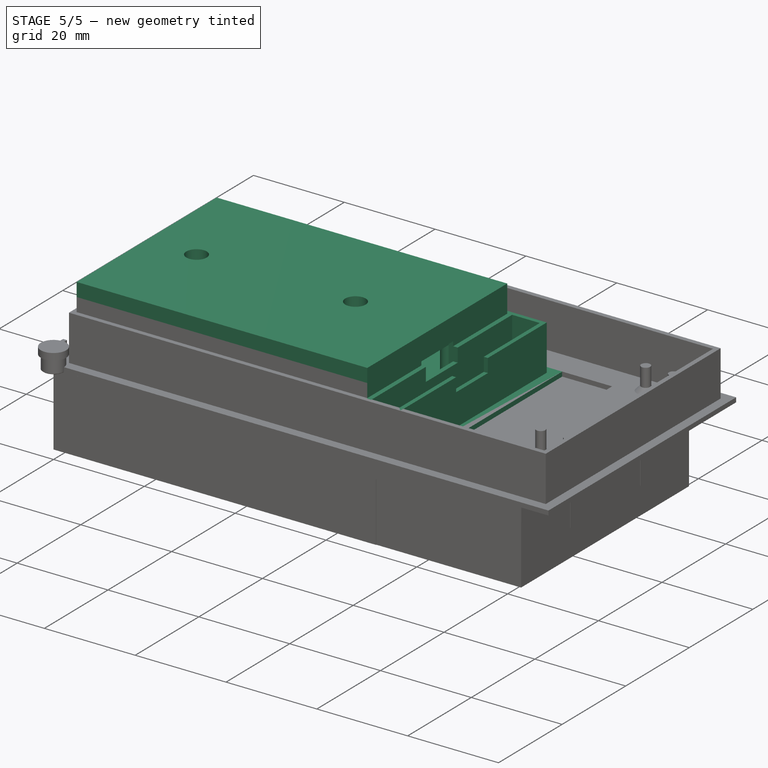
[diagram: stage 5 of 5 — iso view after this stage's code; geometry added in this stage tinted green]
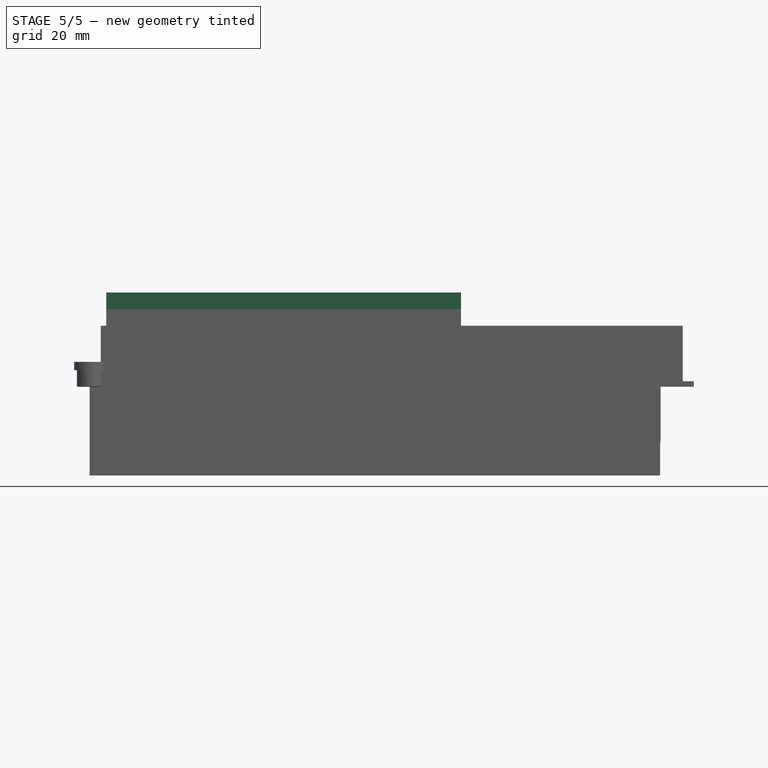
[diagram: stage 5 of 5 — front view after this stage's code; geometry added in this stage tinted green]
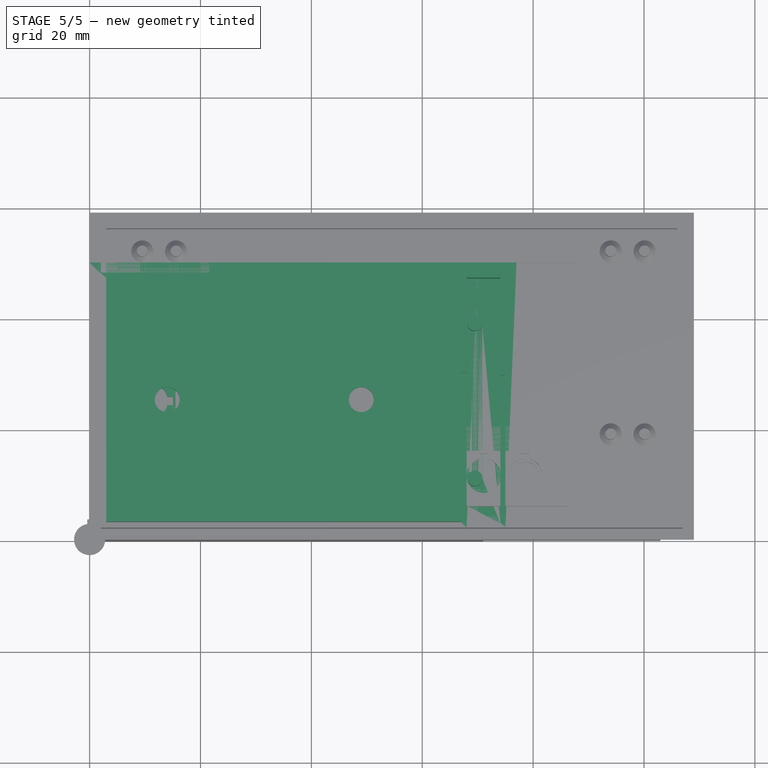
[diagram: stage 5 of 5 — top view after this stage's code; geometry added in this stage tinted green]
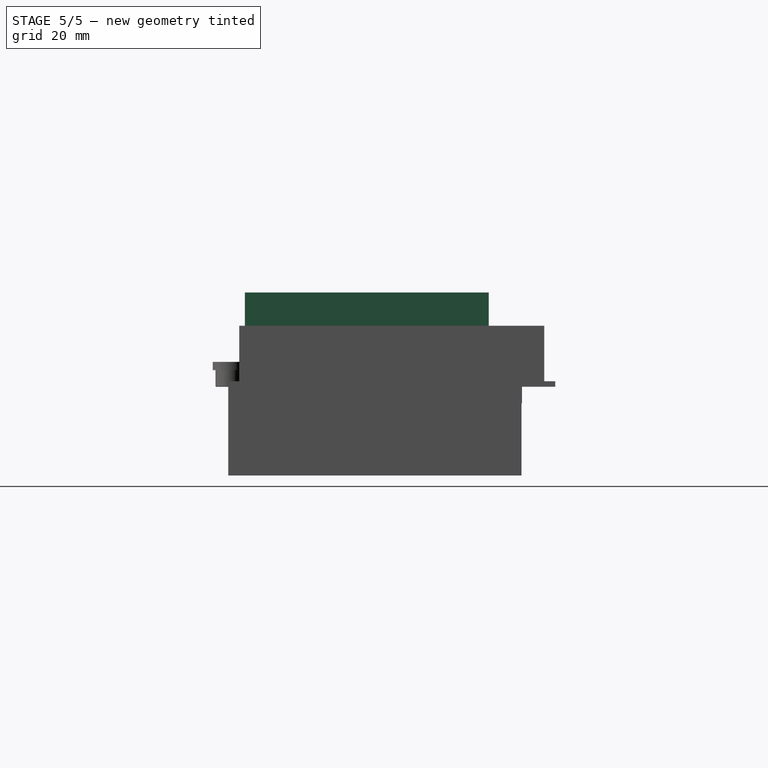
[diagram: stage 5 of 5 — right view after this stage's code; geometry added in this stage tinted green]
FEATURE [Sketcher::SketchObject] Sketch005
  FullyConstrained = true
  MapMode = 5
  Support = -> [XY_Plane005]
  sketch-geometry (8):
    g0: LineSegment StartX=0 StartY=0 StartZ=0 EndX=70 EndY=0 EndZ=0
    g1: LineSegment StartX=70 StartY=0 StartZ=0 EndX=70 EndY=50 EndZ=0
    g2: LineSegment StartX=70 StartY=50 StartZ=0 EndX=0 EndY=50 EndZ=0
    g3: LineSegment StartX=0 StartY=50 StartZ=0 EndX=0 EndY=0 EndZ=0
    g4: LineSegment StartX=21 StartY=11 StartZ=0 EndX=49 EndY=11 EndZ=0
    g5: LineSegment StartX=49 StartY=11 StartZ=0 EndX=49 EndY=39 EndZ=0
    g6: LineSegment StartX=49 StartY=39 StartZ=0 EndX=21 EndY=39 EndZ=0
    g7: LineSegment StartX=21 StartY=39 StartZ=0 EndX=21 EndY=11 EndZ=0
  constraints (23):
    c: Coincident(g0,g1)
    c: Coincident(g1,g2)
    c: Coincident(g2,g3)
    c: Coincident(g3,g0)
    c: Horizontal(g0)
    c: Horizontal(g2)
    c: Vertical(g1)
    c: Vertical(g3)
    c: Coincident(g0,g-1)
    c: Coincident(g4,g5)
    c: Coincident(g5,g6)
    c: Coincident(g6,g7)
    c: Coincident(g7,g4)
    c: Horizontal(g4)
    c: Horizontal(g6)
    c: Vertical(g5)
    c: Vertical(g7)
    c: DistanceX(g6,g6) = 28
    c: DistanceY(g5,g5) = 28
    c: DistanceX(g2,g2) = 70
    c: DistanceY(g1,g1) = 50
    c: DistanceX(g-1,g6) = 21
    c: DistanceY(g6,g2) = 11
FEATURE [PartDesign::Pad] Pad
  Direction = (0,0,1)
  Length = 1
  Length2 = 10
  Profile = -> Sketch005
  ReferenceAxis = -> Sketch005 [N_Axis]
  Type = 0
FEATURE [Sketcher::SketchObject] Sketch006
  AttachmentOffset = pos=(0,0,1) rot=(0,0,1;0rad)
  ExternalGeometry = -> [Sketch005]
  FullyConstrained = true
  MapMode = 5
  Placement = pos=(0,0,1) rot=(0,0,1;0rad)
  Support = -> [XY_Plane005]
  sketch-geometry (4):
    g0: Circle CenterX=16.5 CenterY=39 CenterZ=0 NormalX=0 NormalY=0 NormalZ=1 AngleXU=0 Radius=1.4
    g1: Circle CenterX=59.5 CenterY=39 CenterZ=0 NormalX=0 NormalY=0 NormalZ=1 AngleXU=0 Radius=1.4
    g2: Circle CenterX=59.5 CenterY=11 CenterZ=0 NormalX=0 NormalY=0 NormalZ=1 AngleXU=0 Radius=1.4
    g3: Circle CenterX=16.5 CenterY=11 CenterZ=0 NormalX=0 NormalY=0 NormalZ=1 AngleXU=0 Radius=1.4
  constraints (12):
    c: Equal(g0,g1)
    c: Equal(g0,g2)
    c: Equal(g0,g3)
    c: Radius(g0) = 1.4
    c: Horizontal(g0,g1)
    c: Horizontal(g3,g2)
    c: Vertical(g3,g0)
    c: Vertical(g1,g2)
    c: Horizontal(g3,g-4)
    c: DistanceX(g0,g1) = 43
    c: DistanceY(g3,g0) = 28
    c: DistanceX(g3,g-4) = 4.5
FEATURE [PartDesign::Pad] Pad001
  BaseFeature = -> Pad
  Direction = (0,0,1)
  Length = 6
  Length2 = 10
  Profile = -> Sketch006
  ReferenceAxis = -> Sketch006 [N_Axis]
  Type = 0
FEATURE [Sketcher::SketchObject] Sketch007
  AttachmentOffset = pos=(0,0,1) rot=(0,0,1;0rad)
  ExternalGeometry = -> [Sketch005]
  FullyConstrained = true
  MapMode = 5
  Placement = pos=(0,0,1) rot=(0,0,1;0rad)
  Support = -> [XY_Plane005]
  sketch-geometry (8):
    g0: LineSegment StartX=2 StartY=48 StartZ=0 EndX=68 EndY=48 EndZ=0
    g1: LineSegment StartX=68 StartY=48 StartZ=0 EndX=68 EndY=2 EndZ=0
    g2: LineSegment StartX=68 StartY=2 StartZ=0 EndX=2 EndY=2 EndZ=0
    g3: LineSegment StartX=2 StartY=2 StartZ=0 EndX=2 EndY=48 EndZ=0
    g4: LineSegment StartX=3 StartY=3 StartZ=0 EndX=67 EndY=3 EndZ=0
    g5: LineSegment StartX=67 StartY=3 StartZ=0 EndX=67 EndY=47 EndZ=0
    g6: LineSegment StartX=67 StartY=47 StartZ=0 EndX=3 EndY=47 EndZ=0
    g7: LineSegment StartX=3 StartY=47 StartZ=0 EndX=3 EndY=3 EndZ=0
  constraints (24):
    c: Coincident(g0,g1)
    c: Coincident(g1,g2)
    c: Coincident(g2,g3)
    c: Coincident(g3,g0)
    c: Horizontal(g0)
    c: Horizontal(g2)
    c: Vertical(g1)
    c: Vertical(g3)
    c: Coincident(g4,g5)
    c: Coincident(g5,g6)
    c: Coincident(g6,g7)
    c: Coincident(g7,g4)
    c: Horizontal(g4)
    c: Horizontal(g6)
    c: Vertical(g5)
    c: Vertical(g7)
    c: DistanceY(g6,g0) = 1
    c: DistanceX(g0,g6) = 1
    c: DistanceX(g5,g0) = 1
    c: DistanceY(g1,g4) = 1
    c: DistanceX(g0,g-3) = 2
    c: DistanceY(g0,g-3) = 2
    c: DistanceX(g-3,g0) = 2
    c: DistanceY(g-4,g1) = 2
FEATURE [PartDesign::Pad] Pad002
  BaseFeature = -> Pad001
  Direction = (0,0,1)
  Length = 10
  Length2 = 10
  Profile = -> Sketch007
  ReferenceAxis = -> Sketch007 [N_Axis]
  Type = 0
FEATURE [Sketcher::SketchObject] Sketch008
  ExternalGeometry = -> [Pad002]
  FullyConstrained = true
  MapMode = 5
  Placement = pos=(68,0,0) rot=(0.57735,0.57735,0.57735;2.0944rad)
  Support = -> [Pad002]
  sketch-geometry (4):
    g0: LineSegment StartX=20 StartY=8 StartZ=0 EndX=30 EndY=8 EndZ=0
    g1: LineSegment StartX=30 StartY=8 StartZ=0 EndX=30 EndY=11 EndZ=0
    g2: LineSegment StartX=30 StartY=11 StartZ=0 EndX=20 EndY=11 EndZ=0
    g3: LineSegment StartX=20 StartY=11 StartZ=0 EndX=20 EndY=8 EndZ=0
  constraints (12):
    c: Coincident(g0,g1)
    c: Coincident(g1,g2)
    c: Coincident(g2,g3)
    c: Coincident(g3,g0)
    c: Horizontal(g0)
    c: Horizontal(g2)
    c: Vertical(g1)
    c: Vertical(g3)
    c: DistanceX(g2,g2) = 10
    c: DistanceY(g1,g1) = 3
    c: DistanceX(g-3,g0) = 18
    c: DistanceY(g-4,g0) = 7
FEATURE [PartDesign::Pocket] Pocket
  BaseFeature = -> Pad002
  Direction = (-1,0,0)
  Length = 5
  Length2 = 5
  Profile = -> Sketch008
  ReferenceAxis = -> Sketch008 [N_Axis]
  Type = 0
FEATURE [PartDesign::Body] Body005  label="Case Front - 1.54"
  Group = -> [Sketch005,Pad,Sketch006,Pad001,Sketch007,Pad002,Sketch008,Pocket]
  Origin = -> Origin005
  Tip = -> Pocket
FEATURE [Sketcher::SketchObject] Sketch009
  FullyConstrained = true
  MapMode = 5
  Support = -> [XY_Plane006]
  sketch-geometry (8):
    g0: LineSegment StartX=3 StartY=3 StartZ=0 EndX=67 EndY=3 EndZ=0
    g1: LineSegment StartX=67 StartY=3 StartZ=0 EndX=67 EndY=47 EndZ=0
    g2: LineSegment StartX=67 StartY=47 StartZ=0 EndX=3 EndY=47 EndZ=0
    g3: LineSegment StartX=3 StartY=47 StartZ=0 EndX=3 EndY=3 EndZ=0
    g4: LineSegment StartX=66 StartY=46 StartZ=0 EndX=4 EndY=46 EndZ=0
    g5: LineSegment StartX=4 StartY=46 StartZ=0 EndX=4 EndY=4 EndZ=0
    g6: LineSegment StartX=4 StartY=4 StartZ=0 EndX=66 EndY=4 EndZ=0
    g7: LineSegment StartX=66 StartY=4 StartZ=0 EndX=66 EndY=46 EndZ=0
  constraints (24):
    c: Coincident(g0,g1)
    c: Coincident(g1,g2)
    c: Coincident(g2,g3)
    c: Coincident(g3,g0)
    c: Horizontal(g0)
    c: Horizontal(g2)
    c: Vertical(g1)
    c: Vertical(g3)
    c: Coincident(g4,g5)
    c: Coincident(g5,g6)
    c: Coincident(g6,g7)
    c: Coincident(g7,g4)
    c: Horizontal(g4)
    c: Horizontal(g6)
    c: Vertical(g5)
    c: Vertical(g7)
    c: DistanceX(g0,g5) = 1
    c: DistanceY(g4,g2) = 1
    c: DistanceY(g0,g5) = 1
    c: DistanceX(g4,g1) = 1
    c: DistanceX(g-1,g0) = 3
    c: DistanceX(g0,g0) = 64
    c: DistanceY(g-1,g0) = 3
    c: DistanceY(g3,g3) = 44
FEATURE [PartDesign::Pad] Pad003
  Direction = (0,0,1)
  Length = 16
  Length2 = 10
  Profile = -> Sketch009
  ReferenceAxis = -> Sketch009 [N_Axis]
  Type = 0
FEATURE [Sketcher::SketchObject] Sketch010
  FullyConstrained = false
  MapMode = 5
  Placement = pos=(0,0,14) rot=(0,0,1;0rad)
  sketch-geometry (4):
    g0: LineSegment StartX=3 StartY=3 StartZ=0 EndX=67 EndY=3 EndZ=0
    g1: LineSegment StartX=67 StartY=3 StartZ=0 EndX=67 EndY=47 EndZ=0
    g2: LineSegment StartX=67 StartY=47 StartZ=0 EndX=3 EndY=47 EndZ=0
    g3: LineSegment StartX=3 StartY=47 StartZ=0 EndX=3 EndY=3 EndZ=0
  constraints (8):
    c: Coincident(g0,g1)
    c: Coincident(g1,g2)
    c: Coincident(g2,g3)
    c: Coincident(g3,g0)
    c: Horizontal(g0)
    c: Horizontal(g2)
    c: Vertical(g1)
    c: Vertical(g3)
FEATURE [PartDesign::Pad] Pad004
  BaseFeature = -> Pad003
  Direction = (0,0,1)
  Length = 3
  Length2 = 10
  Profile = -> Sketch010
  ReferenceAxis = -> Sketch010 [N_Axis]
  Type = 0
FEATURE [Sketcher::SketchObject] Sketch011
  AttachmentOffset = pos=(0,0,14) rot=(0,0,1;0rad)
  ExternalGeometry = -> [Pad004]
  FullyConstrained = false
  MapMode = 5
  Placement = pos=(0,0,14) rot=(0,0,1;0rad)
  Support = -> [XY_Plane006]
  sketch-geometry (12):
    g0: LineSegment StartX=27 StartY=37 StartZ=0 EndX=26 EndY=37 EndZ=0
    g1: LineSegment StartX=26 StartY=37 StartZ=0 EndX=26 EndY=42 EndZ=0
    g2: LineSegment StartX=26 StartY=42 StartZ=0 EndX=67 EndY=42 EndZ=0
    g3: LineSegment StartX=67 StartY=42 StartZ=0 EndX=67 EndY=8 EndZ=0
    g4: LineSegment StartX=67 StartY=8 StartZ=0 EndX=26 EndY=8 EndZ=0
    g5: LineSegment StartX=26 StartY=8 StartZ=0 EndX=26 EndY=13 EndZ=0
    g6: LineSegment StartX=26 StartY=13 StartZ=0 EndX=27 EndY=13 EndZ=0
    g7: LineSegment StartX=27 StartY=13 StartZ=0 EndX=27 EndY=9 EndZ=0
    g8: LineSegment StartX=27 StartY=9 StartZ=0 EndX=66 EndY=9 EndZ=0
    g9: LineSegment StartX=66 StartY=9 StartZ=0 EndX=66 EndY=41 EndZ=0
    g10: LineSegment StartX=66 StartY=41 StartZ=0 EndX=27 EndY=41 EndZ=0
    g11: LineSegment StartX=27 StartY=41 StartZ=0 EndX=27 EndY=37 EndZ=0
  constraints (34):
    c: Horizontal(g0)
    c: Coincident(g0,g1)
    c: Vertical(g1)
    c: Coincident(g1,g2)
    c: Horizontal(g2)
    c: Coincident(g2,g3)
    c: Vertical(g3)
    c: Coincident(g3,g4)
    c: Horizontal(g4)
    c: Coincident(g4,g5)
    c: Vertical(g5)
    c: Coincident(g5,g6)
    c: Horizontal(g6)
    c: Coincident(g6,g7)
    c: Vertical(g7)
    c: Coincident(g7,g8)
    c: Horizontal(g8)
    c: Coincident(g8,g9)
    c: Coincident(g9,g10)
    c: Horizontal(g10)
    c: Coincident(g10,g11)
    c: Coincident(g11,g0)
    c: Vertical(g11)
    c: Vertical(g9)
    c: DistanceX(g10,g10) = 39
    c: DistanceY(g9,g9) = 32
    c: DistanceX(g9,g2) = 1
    c: DistanceY(g9,g2) = 1
    c: DistanceX(g1,g10) = 1
    c: Vertical(g6,g0)
    c: Vertical(g5,g0)
    c: DistanceY(g4,g7) = 1
    c: DistanceY(g11,g11) = 4
    c: DistanceY(g7,g7) = 4
FEATURE [PartDesign::Pad] Pad005
  BaseFeature = -> Pad004
  Direction = (0,0,1)
  Length = 7
  Length2 = 10
  Profile = -> Sketch011
  ReferenceAxis = -> Sketch011 [N_Axis]
  Reversed = true
  Type = 0
FEATURE [Sketcher::SketchObject] Sketch012
  ExternalGeometry = -> [Pad005]
  FullyConstrained = true
  MapMode = 5
  Placement = pos=(67,0,0) rot=(0.57735,0.57735,0.57735;2.0944rad)
  Support = -> [Pad005]
  sketch-geometry (4):
    g0: LineSegment StartX=20 StartY=0 StartZ=0 EndX=30 EndY=0 EndZ=0
    g1: LineSegment StartX=30 StartY=0 StartZ=0 EndX=30 EndY=12 EndZ=0
    g2: LineSegment StartX=30 StartY=12 StartZ=0 EndX=20 EndY=12 EndZ=0
    g3: LineSegment StartX=20 StartY=12 StartZ=0 EndX=20 EndY=0 EndZ=0
  constraints (12):
    c: Coincident(g0,g1)
    c: Coincident(g1,g2)
    c: Coincident(g2,g3)
    c: Coincident(g3,g0)
    c: Horizontal(g0)
    c: Horizontal(g2)
    c: Vertical(g1)
    c: Vertical(g3)
    c: DistanceX(g2,g2) = 10
    c: DistanceY(g1,g1) = 12
    c: PointOnObject(g0,g-1)
    c: DistanceX(g1,g-4) = 17
FEATURE [PartDesign::Pocket] Pocket001
  BaseFeature = -> Pad005
  Direction = (-1,0,0)
  Length = 5
  Length2 = 5
  Profile = -> Sketch012
  ReferenceAxis = -> Sketch012 [N_Axis]
  Type = 0
FEATURE [Sketcher::SketchObject] Sketch013
  AttachmentOffset = pos=(0,0,14) rot=(0,0,1;0rad)
  ExternalGeometry = -> [Pocket001]
  FullyConstrained = true
  MapMode = 5
  Placement = pos=(0,0,14) rot=(0,0,1;0rad)
  Support = -> [XY_Plane006]
  sketch-geometry (2):
    g0: Circle CenterX=14 CenterY=25 CenterZ=0 NormalX=0 NormalY=0 NormalZ=1 AngleXU=0 Radius=4
    g1: Circle CenterX=49 CenterY=25 CenterZ=0 NormalX=0 NormalY=0 NormalZ=1 AngleXU=0 Radius=4
  constraints (6):
    c: Radius(g1) = 4
    c: Radius(g0) = 4
    c: DistanceX(g-3,g0) = 10
    c: DistanceY(g-3,g0) = 21
    c: Horizontal(g0,g1)
    c: DistanceX(g0,g1) = 35
FEATURE [PartDesign::Pad] Pad006
  BaseFeature = -> Pocket001
  Direction = (0,0,1)
  Length = 0.5
  Length2 = 10
  Profile = -> Sketch013
  ReferenceAxis = -> Sketch013 [N_Axis]
  Reversed = true
  Type = 0
FEATURE [Sketcher::SketchObject] Sketch014
  AttachmentOffset = pos=(0,0,14) rot=(0,0,1;0rad)
  ExternalGeometry = -> [Sketch009]
  FullyConstrained = true
  MapMode = 5
  Placement = pos=(0,0,14) rot=(0,0,1;0rad)
  Support = -> [XY_Plane006]
  sketch-geometry (8):
    g0: LineSegment StartX=66 StartY=15 StartZ=0 EndX=54 EndY=15 EndZ=0
    g1: LineSegment StartX=54 StartY=15 StartZ=0 EndX=54 EndY=35 EndZ=0
    g2: LineSegment StartX=54 StartY=35 StartZ=0 EndX=66 EndY=35 EndZ=0
    g3: LineSegment StartX=66 StartY=35 StartZ=0 EndX=66 EndY=15 EndZ=0
    g4: LineSegment StartX=29 StartY=30 StartZ=0 EndX=44 EndY=30 EndZ=0
    g5: LineSegment StartX=44 StartY=30 StartZ=0 EndX=44 EndY=20 EndZ=0
    g6: LineSegment StartX=44 StartY=20 StartZ=0 EndX=29 EndY=20 EndZ=0
    g7: LineSegment StartX=29 StartY=20 StartZ=0 EndX=29 EndY=30 EndZ=0
  constraints (24):
    c: Coincident(g0,g1)
    c: Coincident(g1,g2)
    c: Coincident(g2,g3)
    c: Coincident(g3,g0)
    c: Horizontal(g0)
    c: Horizontal(g2)
    c: Vertical(g1)
    c: Vertical(g3)
    c: DistanceY(g1,g1) = 20
    c: DistanceX(g2,g2) = 12
    c: Coincident(g4,g5)
    c: Coincident(g5,g6)
    c: Coincident(g6,g7)
    c: Coincident(g7,g4)
    c: Horizontal(g4)
    c: Horizontal(g6)
    c: Vertical(g5)
    c: Vertical(g7)
    c: DistanceX(g4,g4) = 15
    c: DistanceY(g5,g5) = 10
    c: DistanceX(g4,g1) = 10
    c: DistanceY(g4,g1) = 5
    c: PointOnObject(g2,g-3)
    c: DistanceY(g2,g-3) = 11
FEATURE [PartDesign::Pad] Pad007
  BaseFeature = -> Pad006
  Direction = (0,0,1)
  Length = 3
  Length2 = 10
  Profile = -> Sketch014
  ReferenceAxis = -> Sketch014 [N_Axis]
  Reversed = true
  Type = 0
FEATURE [PartDesign::Hole] Hole
  BaseFeature = -> Pad007
  CustomThreadClearance = 0
  Depth = 25
  DepthType = 0
  Diameter = 4.5
  DrillForDepth = false
  DrillPoint = 1
  DrillPointAngle = 118
  HoleCutCountersinkAngle = 90
  HoleCutCustomValues = false
  HoleCutDepth = 0
  HoleCutDiameter = 6.1
  HoleCutType = 2
  ModelThread = false
  Profile = -> Pad007 [Face53]
  Tapered = false
  TaperedAngle = 90
  ThreadClass = 0
  ThreadDepth = 25
  ThreadDepthType = 0
  ThreadDirection = 0
  ThreadFit = 0
  ThreadSize = 11
  ThreadType = 1
  Threaded = false
  UseCustomThreadClearance = false
FEATURE [PartDesign::Hole] Hole001
  BaseFeature = -> Hole
  CustomThreadClearance = 0
  Depth = 25
  DepthType = 0
  Diameter = 4.5
  DrillForDepth = false
  DrillPoint = 1
  DrillPointAngle = 118
  HoleCutCountersinkAngle = 90
  HoleCutCustomValues = false
  HoleCutDepth = 0
  HoleCutDiameter = 6.1
  HoleCutType = 2
  ModelThread = false
  Profile = -> Hole [Face52]
  Tapered = false
  TaperedAngle = 90
  ThreadClass = 0
  ThreadDepth = 25
  ThreadDepthType = 0
  ThreadDirection = 0
  ThreadFit = 0
  ThreadSize = 11
  ThreadType = 1
  Threaded = false
  UseCustomThreadClearance = false
FEATURE [Sketcher::SketchObject] Sketch028
  FullyConstrained = true
  MapMode = 5
  Support = -> [XY_Plane010]
  sketch-geometry (11):
    g0: LineSegment StartX=0 StartY=0 StartZ=0 EndX=77 EndY=0 EndZ=0
    g1: LineSegment StartX=77 StartY=0 StartZ=0 EndX=77 EndY=50 EndZ=0
    g2: LineSegment StartX=77 StartY=50 StartZ=0 EndX=0 EndY=50 EndZ=0
    g3: LineSegment StartX=0 StartY=50 StartZ=0 EndX=0 EndY=0 EndZ=0
    g4: LineSegment StartX=31 StartY=11 StartZ=0 EndX=59 EndY=11 EndZ=0
    g5: LineSegment StartX=59 StartY=11 StartZ=0 EndX=59 EndY=39 EndZ=0
    g6: LineSegment StartX=59 StartY=39 StartZ=0 EndX=31 EndY=39 EndZ=0
    g7: LineSegment StartX=31 StartY=39 StartZ=0 EndX=31 EndY=11 EndZ=0
    g8: Circle CenterX=11 CenterY=32.5 CenterZ=0 NormalX=0 NormalY=0 NormalZ=1 AngleXU=0 Radius=2.5
    g9: Circle CenterX=11 CenterY=25 CenterZ=0 NormalX=0 NormalY=0 NormalZ=1 AngleXU=0 Radius=2.5
    g10: Circle CenterX=11 CenterY=17.5 CenterZ=0 NormalX=0 NormalY=0 NormalZ=1 AngleXU=0 Radius=2.5
  constraints (32):
    c: Coincident(g0,g1)
    c: Coincident(g1,g2)
    c: Coincident(g2,g3)
    c: Coincident(g3,g0)
    c: Horizontal(g0)
    c: Horizontal(g2)
    c: Vertical(g1)
    c: Vertical(g3)
    c: Coincident(g0,g-1)
    c: Coincident(g4,g5)
    c: Coincident(g5,g6)
    c: Coincident(g6,g7)
    c: Coincident(g7,g4)
    c: Horizontal(g4)
    c: Horizontal(g6)
    c: Vertical(g5)
    c: Vertical(g7)
    c: DistanceX(g6,g6) = 28
    c: DistanceY(g5,g5) = 28
    c: DistanceX(g2,g2) = 77
    c: DistanceY(g1,g1) = 50
    c: DistanceX(g-1,g6) = 31
    c: DistanceY(g6,g2) = 11
    c: Equal(g10,g9)
    c: Equal(g9,g8)
    c: Radius(g8) = 2.5
    c: Vertical(g9,g8)
    c: Vertical(g8,g10)
    c: DistanceY(g9,g8) = 7.5
    c: DistanceY(g10,g9) = 7.5
    c: DistanceX(g8,g6) = 20
    c: DistanceY(g9,g6) = 14
FEATURE [PartDesign::Pad] Pad018
  Direction = (0,0,1)
  Length = 1
  Length2 = 10
  Profile = -> Sketch028
  ReferenceAxis = -> Sketch028 [N_Axis]
  Type = 0
FEATURE [Sketcher::SketchObject] Sketch029
  AttachmentOffset = pos=(0,0,1) rot=(0,0,1;0rad)
  ExternalGeometry = -> [Sketch028]
  FullyConstrained = true
  MapMode = 5
  Placement = pos=(0,0,1) rot=(0,0,1;0rad)
  Support = -> [XY_Plane010]
  sketch-geometry (4):
    g0: Circle CenterX=26.5 CenterY=39 CenterZ=0 NormalX=0 NormalY=0 NormalZ=1 AngleXU=0 Radius=1.4
    g1: Circle CenterX=69.5 CenterY=39 CenterZ=0 NormalX=0 NormalY=0 NormalZ=1 AngleXU=0 Radius=1.4
    g2: Circle CenterX=69.5 CenterY=11 CenterZ=0 NormalX=0 NormalY=0 NormalZ=1 AngleXU=0 Radius=1.4
    g3: Circle CenterX=26.5 CenterY=11 CenterZ=0 NormalX=0 NormalY=0 NormalZ=1 AngleXU=0 Radius=1.4
  constraints (12):
    c: Equal(g0,g1)
    c: Equal(g0,g2)
    c: Equal(g0,g3)
    c: Radius(g0) = 1.4
    c: Horizontal(g0,g1)
    c: Horizontal(g3,g2)
    c: Vertical(g3,g0)
    c: Vertical(g1,g2)
    c: DistanceX(g0,g1) = 43
    c: DistanceX(g3,g-4) = 4.5
    c: DistanceY(g3,g0) = 28
    c: Horizontal(g-3,g0)
FEATURE [PartDesign::Pad] Pad019
  BaseFeature = -> Pad018
  Direction = (0,0,1)
  Length = 5
  Length2 = 10
  Profile = -> Sketch029
  ReferenceAxis = -> Sketch029 [N_Axis]
  Type = 0
FEATURE [Sketcher::SketchObject] Sketch030
  AttachmentOffset = pos=(0,0,1) rot=(0,0,1;0rad)
  ExternalGeometry = -> [Sketch028]
  FullyConstrained = true
  MapMode = 5
  Placement = pos=(0,0,1) rot=(0,0,1;0rad)
  Support = -> [XY_Plane010]
  sketch-geometry (8):
    g0: LineSegment StartX=2 StartY=48 StartZ=0 EndX=75 EndY=48 EndZ=0
    g1: LineSegment StartX=75 StartY=48 StartZ=0 EndX=75 EndY=2 EndZ=0
    g2: LineSegment StartX=75 StartY=2 StartZ=0 EndX=2 EndY=2 EndZ=0
    g3: LineSegment StartX=2 StartY=2 StartZ=0 EndX=2 EndY=48 EndZ=0
    g4: LineSegment StartX=2.9 StartY=2.9 StartZ=0 EndX=74.1 EndY=2.9 EndZ=0
    g5: LineSegment StartX=74.1 StartY=2.9 StartZ=0 EndX=74.1 EndY=47.1 EndZ=0
    g6: LineSegment StartX=74.1 StartY=47.1 StartZ=0 EndX=2.9 EndY=47.1 EndZ=0
    g7: LineSegment StartX=2.9 StartY=47.1 StartZ=0 EndX=2.9 EndY=2.9 EndZ=0
  constraints (24):
    c: Coincident(g0,g1)
    c: Coincident(g1,g2)
    c: Coincident(g2,g3)
    c: Coincident(g3,g0)
    c: Horizontal(g0)
    c: Horizontal(g2)
    c: Vertical(g1)
    c: Vertical(g3)
    c: Coincident(g4,g5)
    c: Coincident(g5,g6)
    c: Coincident(g6,g7)
    c: Coincident(g7,g4)
    c: Horizontal(g4)
    c: Horizontal(g6)
    c: Vertical(g5)
    c: Vertical(g7)
    c: DistanceY(g6,g0) = 0.9
    c: DistanceX(g0,g6) = 0.9
    c: DistanceX(g5,g0) = 0.9
    c: DistanceY(g1,g4) = 0.9
    c: DistanceX(g0,g-3) = 2
    c: DistanceY(g0,g-3) = 2
    c: DistanceX(g-3,g0) = 2
    c: DistanceY(g-4,g1) = 2
FEATURE [PartDesign::Pad] Pad020
  BaseFeature = -> Pad019
  Direction = (0,0,1)
  Length = 10
  Length2 = 10
  Profile = -> Sketch030
  ReferenceAxis = -> Sketch030 [N_Axis]
  Type = 0
FEATURE [Sketcher::SketchObject] Sketch031
  ExternalGeometry = -> [Pad020]
  FullyConstrained = true
  MapMode = 5
  Placement = pos=(75,0,0) rot=(0.57735,0.57735,0.57735;2.0944rad)
  Support = -> [Pad020]
  sketch-geometry (4):
    g0: LineSegment StartX=19.5 StartY=11 StartZ=0 EndX=29.5 EndY=11 EndZ=0
    g1: LineSegment StartX=29.5 StartY=11 StartZ=0 EndX=29.5 EndY=8 EndZ=0
    g2: LineSegment StartX=29.5 StartY=8 StartZ=0 EndX=19.5 EndY=8 EndZ=0
    g3: LineSegment StartX=19.5 StartY=8 StartZ=0 EndX=19.5 EndY=11 EndZ=0
  constraints (13):
    c: Coincident(g0,g1)
    c: Coincident(g1,g2)
    c: Coincident(g2,g3)
    c: Coincident(g3,g0)
    c: Horizontal(g0)
    c: Horizontal(g2)
    c: Vertical(g1)
    c: Vertical(g3)
    c: DistanceX(g0,g0) = 10
    c: DistanceY(g1,g1) = 3
    c: DistanceX(g0,g-3) = 9.5
    c: Horizontal(g0,g-4)
    c: DistanceX(g-3,g-3) = 28
FEATURE [PartDesign::Pocket] Pocket004
  BaseFeature = -> Pad020
  Direction = (-1,0,0)
  Length = 5
  Length2 = 5
  Profile = -> Sketch031
  ReferenceAxis = -> Sketch031 [N_Axis]
  Type = 0
FEATURE [Sketcher::SketchObject] Sketch032
  ExternalGeometry = -> [Pocket004]
  FullyConstrained = true
  MapMode = 5
  Placement = pos=(0,0,1) rot=(0,0,1;0rad)
  Support = -> [Pocket004]
  sketch-geometry (16):
    g0: LineSegment StartX=5.5 StartY=40 StartZ=0 EndX=15.5 EndY=40 EndZ=0
    g1: LineSegment StartX=15.5 StartY=40 StartZ=0 EndX=15.5 EndY=10 EndZ=0
    g2: LineSegment StartX=15.5 StartY=10 StartZ=0 EndX=5.5 EndY=10 EndZ=0
    g3: LineSegment StartX=5.5 StartY=10 StartZ=0 EndX=5.5 EndY=40 EndZ=0
    g4: ArcOfCircle CenterX=11 CenterY=32.5 CenterZ=0 NormalX=0 NormalY=0 NormalZ=1 AngleXU=0 Radius=3.1 StartAngle=0.24436 EndAngle=6.03883
    g5: ArcOfCircle CenterX=11 CenterY=25 CenterZ=0 NormalX=0 NormalY=0 NormalZ=1 AngleXU=0 Radius=3.1 StartAngle=0.24436 EndAngle=6.03883
    g6: ArcOfCircle CenterX=11 CenterY=17.5 CenterZ=0 NormalX=0 NormalY=0 NormalZ=1 AngleXU=0 Radius=3.1 StartAngle=0.24436 EndAngle=6.03883
    g7: LineSegment StartX=14.0079 StartY=33.25 StartZ=0 EndX=15.0079 EndY=33.25 EndZ=0
    g8: LineSegment StartX=15.0079 StartY=33.25 StartZ=0 EndX=15.0079 EndY=31.75 EndZ=0
    g9: LineSegment StartX=15.0079 StartY=31.75 StartZ=0 EndX=14.0079 EndY=31.75 EndZ=0
    g10: LineSegment StartX=14.0079 StartY=25.75 StartZ=0 EndX=15.0079 EndY=25.75 EndZ=0
    g11: LineSegment StartX=15.0079 StartY=25.75 StartZ=0 EndX=15.0079 EndY=24.25 EndZ=0
    g12: LineSegment StartX=15.0079 StartY=24.25 StartZ=0 EndX=14.0079 EndY=24.25 EndZ=0
    g13: LineSegment StartX=14.0079 StartY=18.25 StartZ=0 EndX=15.0079 EndY=18.25 EndZ=0
    g14: LineSegment StartX=15.0079 StartY=18.25 StartZ=0 EndX=15.0079 EndY=16.75 EndZ=0
    g15: LineSegment StartX=15.0079 StartY=16.75 StartZ=0 EndX=14.0079 EndY=16.75 EndZ=0
  constraints (48):
    c: Coincident(g1,g2)
    c: Coincident(g2,g3)
    c: Coincident(g3,g0)
    c: Horizontal(g0)
    c: Horizontal(g2)
    c: Vertical(g1)
    c: Vertical(g3)
    c: DistanceX(g0,g0) = 10
    c: DistanceY(g1,g1) = 30
    c: Coincident(g4,g-3)
    c: Coincident(g5,g-4)
    c: Coincident(g-5,g6)
    c: Vertical(g4,g5)
    c: Vertical(g5,g4)
    c: Vertical(g4,g6)
    c: Vertical(g6,g5)
    c: Vertical(g5,g6)
    c: Equal(g4,g5)
    c: Equal(g5,g6)
    c: Radius(g4) = 3.1
    c: DistanceY(g4,g4) = 1.5
    c: Coincident(g7,g8)
    c: Coincident(g8,g9)
    c: Coincident(g4,g9)
    c: Coincident(g4,g7)
    c: Horizontal(g7)
    c: Horizontal(g9)
    c: Vertical(g8)
    c: DistanceX(g7,g7) = 1
    c: Coincident(g10,g11)
    c: Coincident(g11,g12)
    c: Coincident(g13,g14)
    c: Coincident(g14,g15)
    c: Coincident(g6,g13)
    c: Coincident(g15,g6)
    c: Coincident(g5,g12)
    c: Coincident(g10,g5)
    c: Horizontal(g10)
    c: Horizontal(g12)
    c: Horizontal(g13)
    c: Horizontal(g15)
    c: Vertical(g11)
    c: Vertical(g14)
    c: Vertical(g8,g11)
    c: Vertical(g11,g14)
    c: DistanceX(g0,g4) = 5.5
    c: Coincident(g0,g1)
    c: DistanceY(g4,g0) = 7.5
FEATURE [PartDesign::Pad] Pad021
  BaseFeature = -> Pocket004
  Direction = (0,0,1)
  Length = 2
  Length2 = 10
  Profile = -> Sketch032
  ReferenceAxis = -> Sketch032 [N_Axis]
  Type = 0
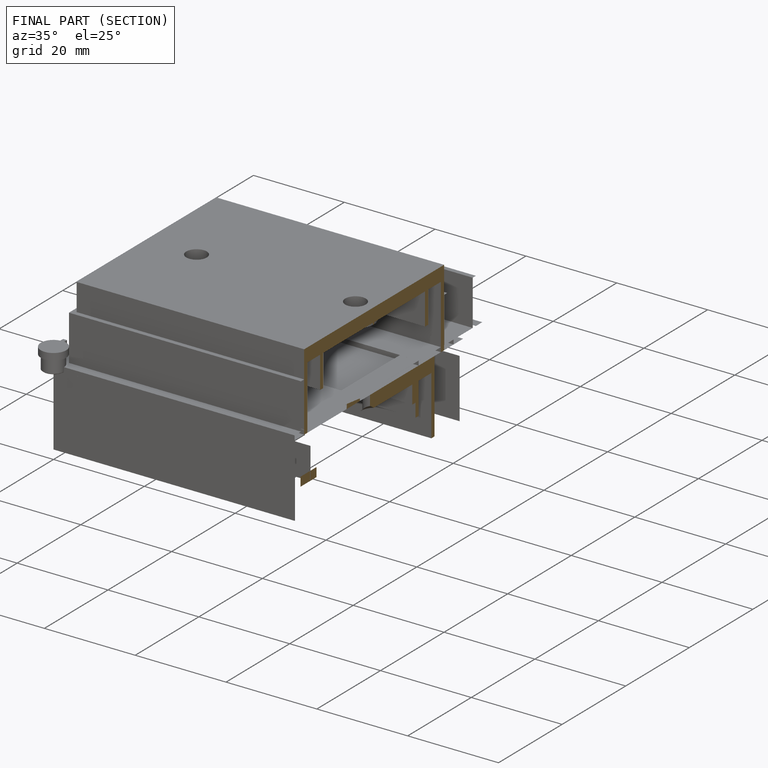
[diagram: finished part — half-section view (interior)]
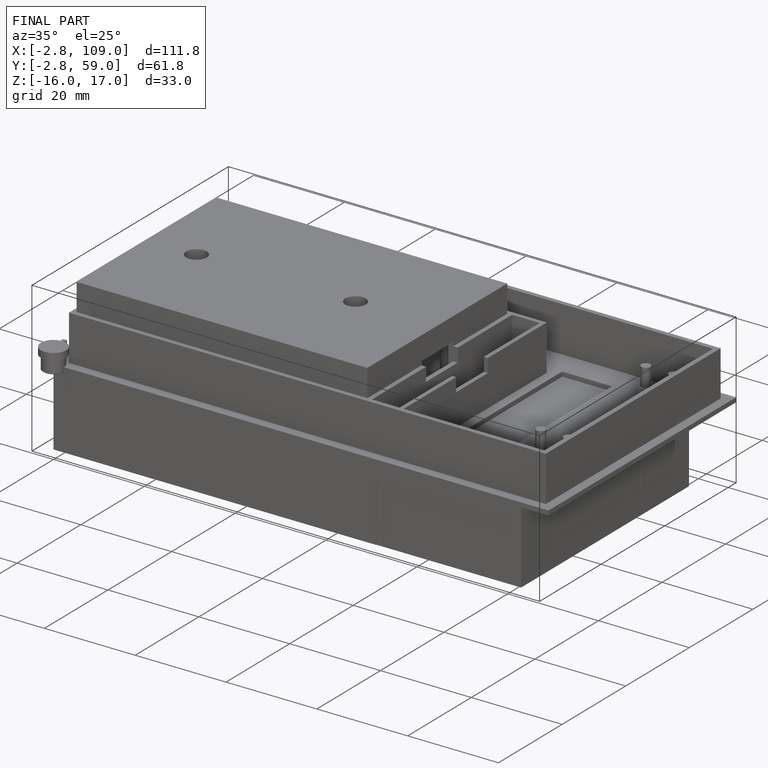
[diagram: finished part — iso view with bounding-box wireframe]
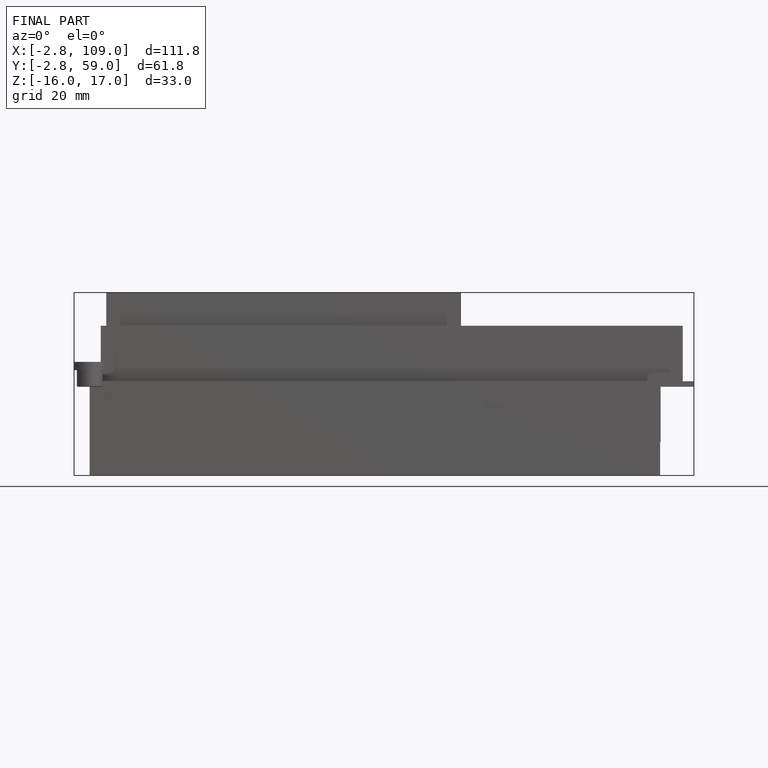
[diagram: finished part — front view with bounding-box wireframe]
